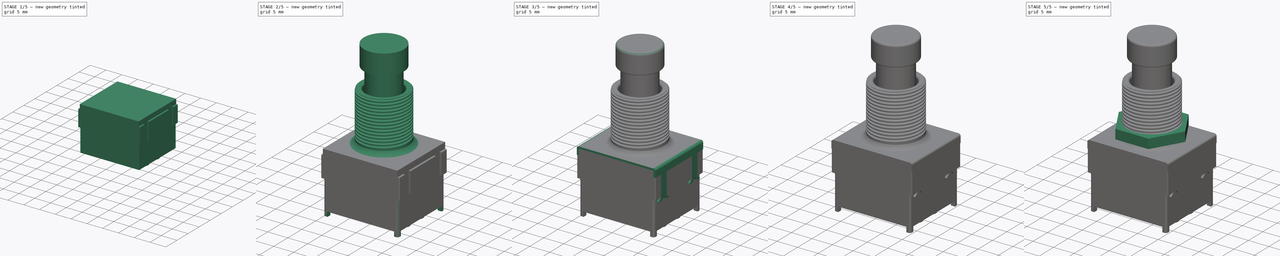
[diagram: build sequence overview — one tinted view per stage of 5, left to right]
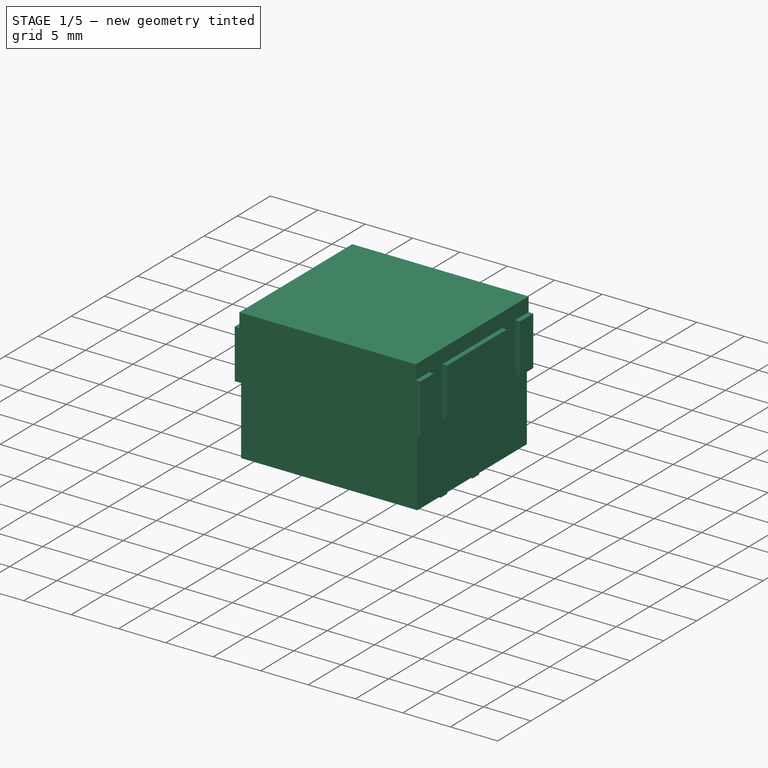
[diagram: stage 1 of 5 — iso view after this stage's code; geometry added in this stage tinted green]
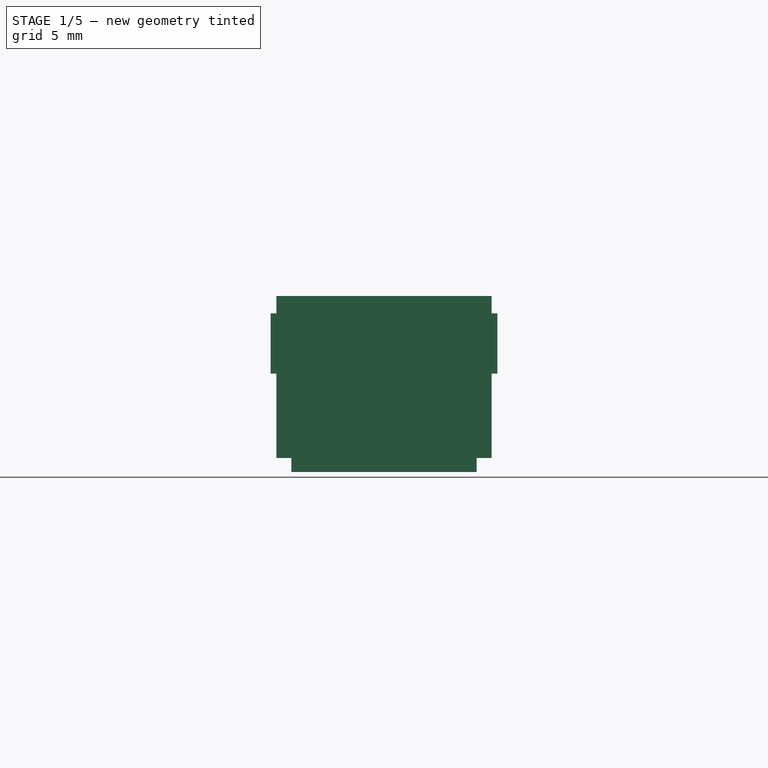
[diagram: stage 1 of 5 — front view after this stage's code; geometry added in this stage tinted green]
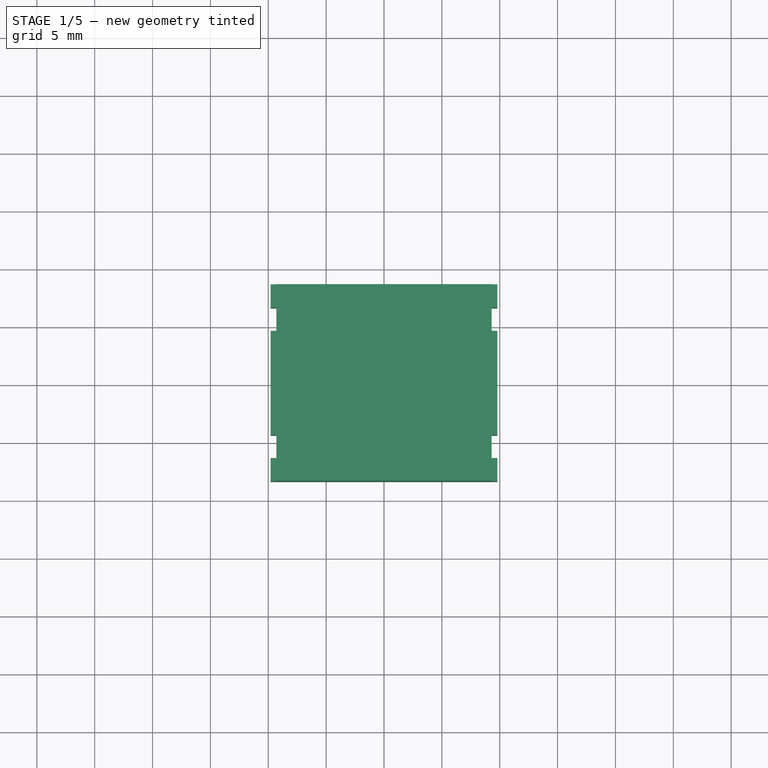
[diagram: stage 1 of 5 — top view after this stage's code; geometry added in this stage tinted green]
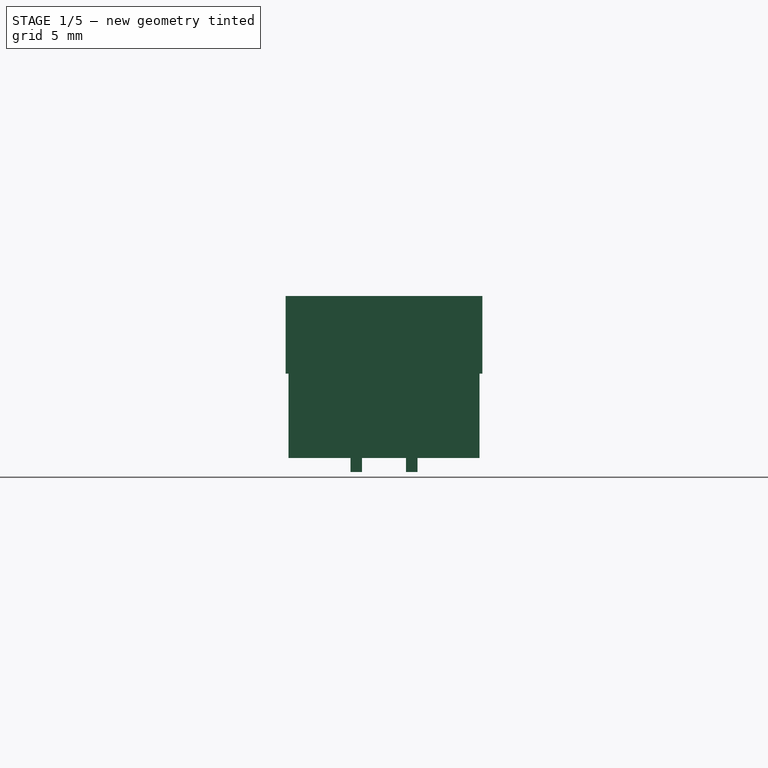
[diagram: stage 1 of 5 — right view after this stage's code; geometry added in this stage tinted green]
FCSTD DOCUMENT  (FreeCAD 0.19R16945 (Git))
Label: Alpha Taiwan SF17010 SF17020
License: All rights reserved
LicenseURL: http://en.wikipedia.org/wiki/All_rights_reserved
objects: Sketcher::SketchObject×36, PartDesign::Body×30, PartDesign::FeatureBase×20, PartDesign::Pad×14, PartDesign::Mirrored×12, PartDesign::Pocket×8, App::DocumentObjectGroup×7, PartDesign::MultiTransform×6, PartDesign::Fillet×5, PartDesign::LinearPattern×4, PartDesign::Plane×3, PartDesign::AdditiveLoft×3, PartDesign::ShapeBinder×2, Part::Helix×1, PartDesign::Chamfer×1, PartDesign::SubtractivePipe×1
note: 172 computed .brp shape members not serialized (recipe doc carries the construction recipe); baked Part::Feature solids carry a one-line shape summary decoded from their .brp

FEATURE [Sketcher::SketchObject] Sketch
  MapMode = 5
  Support = -> [XY_Plane]
  sketch-geometry (4):
    g0: LineSegment StartX=-9.8 StartY=8.5 StartZ=0 EndX=9.8 EndY=8.5 EndZ=0
    g1: LineSegment StartX=9.8 StartY=8.5 StartZ=0 EndX=9.8 EndY=-8.5 EndZ=0
    g2: LineSegment StartX=9.8 StartY=-8.5 StartZ=0 EndX=-9.8 EndY=-8.5 EndZ=0
    g3: LineSegment StartX=-9.8 StartY=-8.5 StartZ=0 EndX=-9.8 EndY=8.5 EndZ=0
  constraints (10):
    c: Coincident(g0,g1)
    c: Coincident(g1,g2)
    c: Coincident(g2,g3)
    c: Coincident(g3,g0)
    c: Horizontal(g2)
    c: Vertical(g3)
    c: Symmetric(g0,g0,g-2)
    c: Symmetric(g0,g1,g-1)
    c: DistanceX(g0,g0) = 19.6
    c: DistanceY(g1,g1) = 17
FEATURE [PartDesign::Pad] Pad  label="MainPad"
  Length = 15.7
  Length2 = 100
  Profile = -> Sketch
  Type = 0
FEATURE [Sketcher::SketchObject] Sketch001
  ExternalGeometry = -> [Pad]
  MapMode = 5
  Placement = pos=(0,-8.5,0) rot=(1,0,0;1.5708rad)
  Support = -> [Pad]
  sketch-geometry (4):
    g0: LineSegment StartX=-9.8 StartY=0 StartZ=0 EndX=9.8 EndY=0 EndZ=0
    g1: LineSegment StartX=9.8 StartY=0 StartZ=0 EndX=9.8 EndY=8.5 EndZ=0
    g2: LineSegment StartX=9.8 StartY=8.5 StartZ=0 EndX=-9.8 EndY=8.5 EndZ=0
    g3: LineSegment StartX=-9.8 StartY=8.5 StartZ=0 EndX=-9.8 EndY=0 EndZ=0
  constraints (11):
    c: Coincident(g0,g1)
    c: Coincident(g1,g2)
    c: Coincident(g2,g3)
    c: Coincident(g3,g0)
    c: Horizontal(g0)
    c: Horizontal(g2)
    c: Vertical(g1)
    c: Vertical(g3)
    c: Coincident(g0,g-3)
    c: PointOnObject(g1,g-4)
    c: DistanceY(g1,g1) = 8.5
FEATURE [PartDesign::Pocket] Pocket  label="FrontPocket"
  BaseFeature = -> Pad
  Length = 0.25
  Length2 = 100
  Profile = -> Sketch001
  Type = 0
FEATURE [PartDesign::Mirrored] Mirrored  label="FrontPocketMirrored"
  BaseFeature = -> Pocket
  MirrorPlane = -> XZ_Plane
  Originals = -> [Pocket]
FEATURE [Sketcher::SketchObject] Sketch002
  ExternalGeometry = -> [Mirrored]
  MapMode = 5
  Placement = pos=(-9.8,0,0) rot=(0.57735,-0.57735,-0.57735;2.0944rad)
  Support = -> [Mirrored]
  sketch-geometry (4):
    g0: LineSegment StartX=-8.25 StartY=0 StartZ=0 EndX=8.25 EndY=0 EndZ=0
    g1: LineSegment StartX=8.25 StartY=0 StartZ=0 EndX=8.25 EndY=8.5 EndZ=0
    g2: LineSegment StartX=8.25 StartY=8.5 StartZ=0 EndX=-8.25 EndY=8.5 EndZ=0
    g3: LineSegment StartX=-8.25 StartY=8.5 StartZ=0 EndX=-8.25 EndY=0 EndZ=0
  constraints (10):
    c: Coincident(g0,g1)
    c: Coincident(g1,g2)
    c: Coincident(g2,g3)
    c: Coincident(g3,g0)
    c: Horizontal(g0)
    c: Horizontal(g2)
    c: Vertical(g1)
    c: Vertical(g3)
    c: Coincident(g0,g-3)
    c: Coincident(g1,g-4)
FEATURE [PartDesign::Pocket] Pocket001  label="SideBottomPocket"
  BaseFeature = -> Mirrored
  Length = 0.5
  Length2 = 100
  Profile = -> Sketch002
  Type = 0
FEATURE [PartDesign::Mirrored] Mirrored001  label="SideBottomPocketMirrored"
  BaseFeature = -> Pocket001
  MirrorPlane = -> YZ_Plane
  Originals = -> [Pocket001]
FEATURE [Sketcher::SketchObject] Sketch008
  ExternalGeometry = -> [Mirrored001]
  MapMode = 5
  Placement = pos=(0,0,15.7) rot=(0,0,1;0rad)
  Support = -> [Mirrored001]
  sketch-geometry (4):
    g0: LineSegment StartX=9.8 StartY=8.5 StartZ=0 EndX=-9.8 EndY=8.5 EndZ=0
    g1: LineSegment StartX=-9.8 StartY=8.5 StartZ=0 EndX=-9.8 EndY=-8.5 EndZ=0
    g2: LineSegment StartX=-9.8 StartY=-8.5 StartZ=0 EndX=9.8 EndY=-8.5 EndZ=0
    g3: LineSegment StartX=9.8 StartY=-8.5 StartZ=0 EndX=9.8 EndY=8.5 EndZ=0
  constraints (10):
    c: Coincident(g0,g1)
    c: Coincident(g1,g2)
    c: Coincident(g2,g3)
    c: Coincident(g3,g0)
    c: Horizontal(g0)
    c: Horizontal(g2)
    c: Vertical(g1)
    c: Vertical(g3)
    c: Coincident(g0,g-3)
    c: Coincident(g1,g-4)
FEATURE [PartDesign::Pocket] Pocket002  label="TopPocket"
  BaseFeature = -> Mirrored001
  Length = 0.5
  Length2 = 100
  Profile = -> Sketch008
  Type = 0
FEATURE [Sketcher::SketchObject] Sketch009
  ExternalGeometry = -> [Pocket002]
  MapMode = 5
  Placement = pos=(-9.8,0,0) rot=(0.57735,-0.57735,-0.57735;2.0944rad)
  Support = -> [Pocket002]
  sketch-geometry (4):
    g0: LineSegment StartX=8.5 StartY=15.2 StartZ=0 EndX=-8.5 EndY=15.2 EndZ=0
    g1: LineSegment StartX=-8.5 StartY=15.2 StartZ=0 EndX=-8.5 EndY=13.7 EndZ=0
    g2: LineSegment StartX=-8.5 StartY=13.7 StartZ=0 EndX=8.5 EndY=13.7 EndZ=0
    g3: LineSegment StartX=8.5 StartY=13.7 StartZ=0 EndX=8.5 EndY=15.2 EndZ=0
  constraints (12):
    c: Coincident(g0,g1)
    c: Coincident(g1,g2)
    c: Coincident(g2,g3)
    c: Coincident(g3,g0)
    c: Horizontal(g0)
    c: Horizontal(g2)
    c: Vertical(g1)
    c: Vertical(g3)
    c: Coincident(g0,g-3)
    c: PointOnObject(g1,g-4)
    c: DistanceY(g1,g1) = 1.5
    c: DistanceY(g-4,g1) = 5.2
FEATURE [PartDesign::Pocket] Pocket003  label="SideTopPocket"
  BaseFeature = -> Pocket002
  Length = 0.5
  Length2 = 100
  Profile = -> Sketch009
  Type = 0
FEATURE [PartDesign::Mirrored] Mirrored004  label="SideTopPocketMirrored"
  BaseFeature = -> Pocket003
  MirrorPlane = -> YZ_Plane
  Originals = -> [Pocket003]
FEATURE [Sketcher::SketchObject] Sketch010
  ExternalGeometry = -> [Mirrored004]
  MapMode = 5
  Placement = pos=(-9.8,0,0) rot=(0.57735,-0.57735,-0.57735;2.0944rad)
  Support = -> [Mirrored004]
  sketch-geometry (4):
    g0: LineSegment StartX=-6.5 StartY=13.7 StartZ=0 EndX=-4.5 EndY=13.7 EndZ=0
    g1: LineSegment StartX=-4.5 StartY=13.7 StartZ=0 EndX=-4.5 EndY=8.5 EndZ=0
    g2: LineSegment StartX=-4.5 StartY=8.5 StartZ=0 EndX=-6.5 EndY=8.5 EndZ=0
    g3: LineSegment StartX=-6.5 StartY=8.5 StartZ=0 EndX=-6.5 EndY=13.7 EndZ=0
  constraints (12):
    c: Coincident(g0,g1)
    c: Coincident(g1,g2)
    c: Coincident(g2,g3)
    c: Coincident(g3,g0)
    c: Horizontal(g0)
    c: Horizontal(g2)
    c: Vertical(g1)
    c: Vertical(g3)
    c: PointOnObject(g0,g-3)
    c: PointOnObject(g1,g-4)
    c: DistanceX(g2,g2) = 2
    c: DistanceX(g-3,g0) = 2
FEATURE [PartDesign::Pocket] Pocket004  label="SideCutoutPocket"
  BaseFeature = -> Mirrored004
  Length = 0.5
  Length2 = 100
  Profile = -> Sketch010
  Refine = true
  Type = 0
FEATURE [PartDesign::Mirrored] Mirrored005
  MirrorPlane = -> XZ_Plane
FEATURE [PartDesign::Mirrored] Mirrored006
  MirrorPlane = -> YZ_Plane
FEATURE [PartDesign::MultiTransform] MultiTransform  label="SideCutoutPocketMultiTransform"
  BaseFeature = -> Pocket004
  Originals = -> [Pocket004]
  Refine = true
  Transformations = -> [Mirrored005,Mirrored006]
FEATURE [PartDesign::Body] Body005  label="Nut"
  Group = -> [Sketch023,Pad010]
  Origin = -> Origin005
  Tip = -> Pad010
FEATURE [Sketcher::SketchObject] Sketch024
  ExternalGeometry = -> [MultiTransform]
  MapMode = 5
  Placement = pos=(0,0,0) rot=(1,0,0;3.14159rad)
  Support = -> [MultiTransform]
  sketch-geometry (4):
    g0: LineSegment StartX=9.8 StartY=8.5 StartZ=0 EndX=-9.8 EndY=8.5 EndZ=0
    g1: LineSegment StartX=-9.8 StartY=8.5 StartZ=0 EndX=-9.8 EndY=-8.5 EndZ=0
    g2: LineSegment StartX=-9.8 StartY=-8.5 StartZ=0 EndX=9.8 EndY=-8.5 EndZ=0
    g3: LineSegment StartX=9.8 StartY=-8.5 StartZ=0 EndX=9.8 EndY=8.5 EndZ=0
  constraints (10):
    c: Coincident(g0,g1)
    c: Coincident(g1,g2)
    c: Coincident(g2,g3)
    c: Coincident(g3,g0)
    c: Horizontal(g0)
    c: Horizontal(g2)
    c: Vertical(g1)
    c: Vertical(g3)
    c: Coincident(g0,g-3)
    c: Coincident(g1,g-5)
FEATURE [PartDesign::Pocket] Pocket006  label="BottomPocket"
  BaseFeature = -> MultiTransform
  Length = 1.2
  Length2 = 100
  Profile = -> Sketch024
  Type = 0
FEATURE [Sketcher::SketchObject] Sketch025
  MapMode = 5
  Placement = pos=(0,0,1.2) rot=(1,0,0;3.14159rad)
  Support = -> [Pocket006]
  sketch-geometry (9):
    g0: LineSegment StartX=8 StartY=2.9 StartZ=0 EndX=8 EndY=1.9 EndZ=0
    g1: LineSegment StartX=-8 StartY=1.9 StartZ=0 EndX=-8 EndY=2.9 EndZ=0
    g2: LineSegment StartX=8 StartY=-1.9 StartZ=0 EndX=8 EndY=-2.9 EndZ=0
    g3: LineSegment StartX=-8 StartY=-2.9 StartZ=0 EndX=-8 EndY=-1.9 EndZ=0
    g4: LineSegment StartX=-8 StartY=2.9 StartZ=0 EndX=8 EndY=2.9 EndZ=0
    g5: LineSegment StartX=8 StartY=1.9 StartZ=0 EndX=-8 EndY=1.9 EndZ=0
    g6: LineSegment StartX=-8 StartY=-1.9 StartZ=0 EndX=8 EndY=-1.9 EndZ=0
    g7: LineSegment StartX=8 StartY=-2.9 StartZ=0 EndX=-8 EndY=-2.9 EndZ=0
    g8: GeomPoint X=-8 Y=2.4 Z=0
  constraints (22):
    c: Vertical(g0)
    c: Vertical(g2)
    c: Equal(g2,g3)
    c: Equal(g3,g1)
    c: Equal(g1,g0)
    c: Symmetric(g1,g3,g-1)
    c: DistanceX(g3,g2) = 16
    c: Symmetric(g1,g0,g-2)
    c: Vertical(g1)
    c: Vertical(g3)
    c: Symmetric(g2,g3,g-2)
    c: Coincident(g4,g1)
    c: Coincident(g4,g0)
    c: Coincident(g5,g0)
    c: Coincident(g5,g1)
    c: Coincident(g6,g3)
    c: Coincident(g6,g2)
    c: Coincident(g7,g2)
    c: Coincident(g7,g3)
    c: DistanceY(g0,g0) = 1
    c: Symmetric(g1,g1,g8)
    c: DistanceY(g-1,g8) = 2.4
FEATURE [PartDesign::Pad] Pad011  label="EpoxyBarrierPad"
  BaseFeature = -> Pocket006
  Length = 1.2
  Length2 = 100
  Profile = -> Sketch025
  Refine = true
  Type = 0
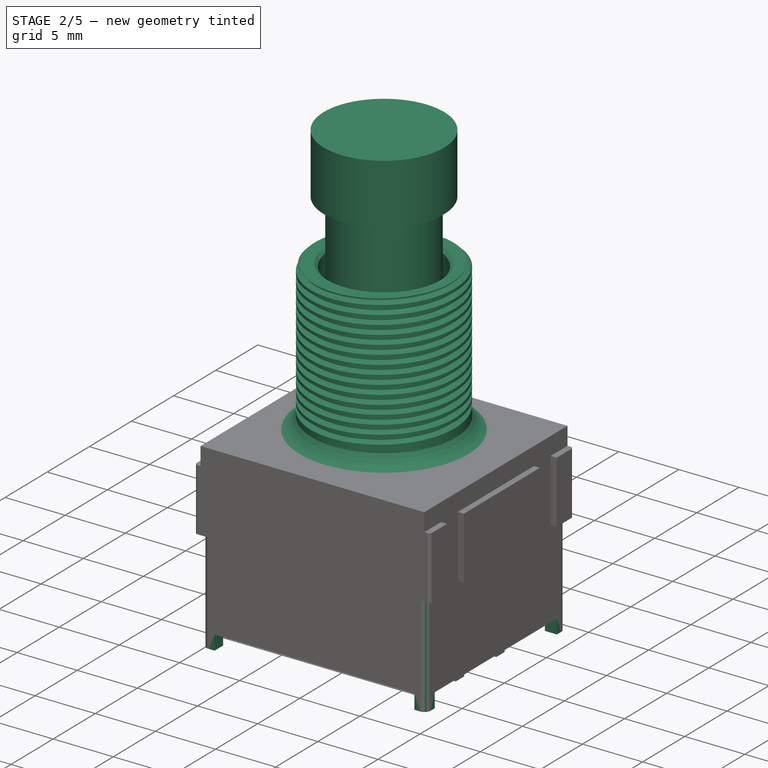
[diagram: stage 2 of 5 — iso view after this stage's code; geometry added in this stage tinted green]
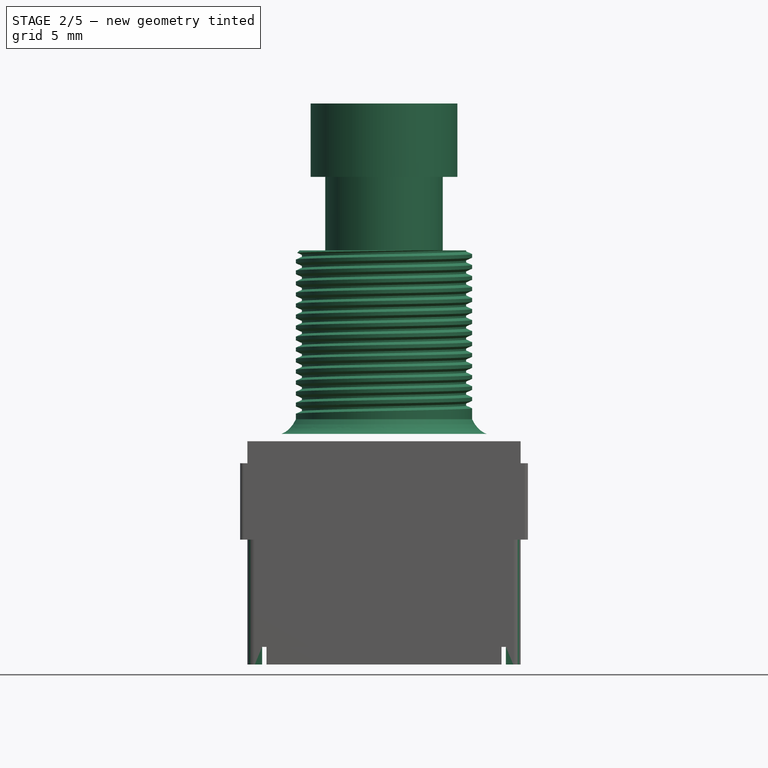
[diagram: stage 2 of 5 — front view after this stage's code; geometry added in this stage tinted green]
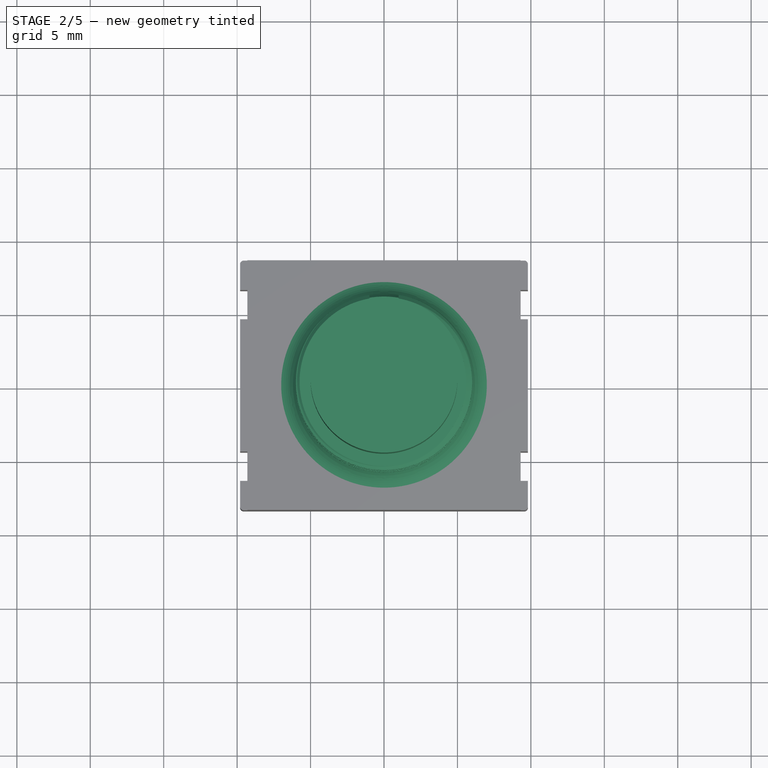
[diagram: stage 2 of 5 — top view after this stage's code; geometry added in this stage tinted green]
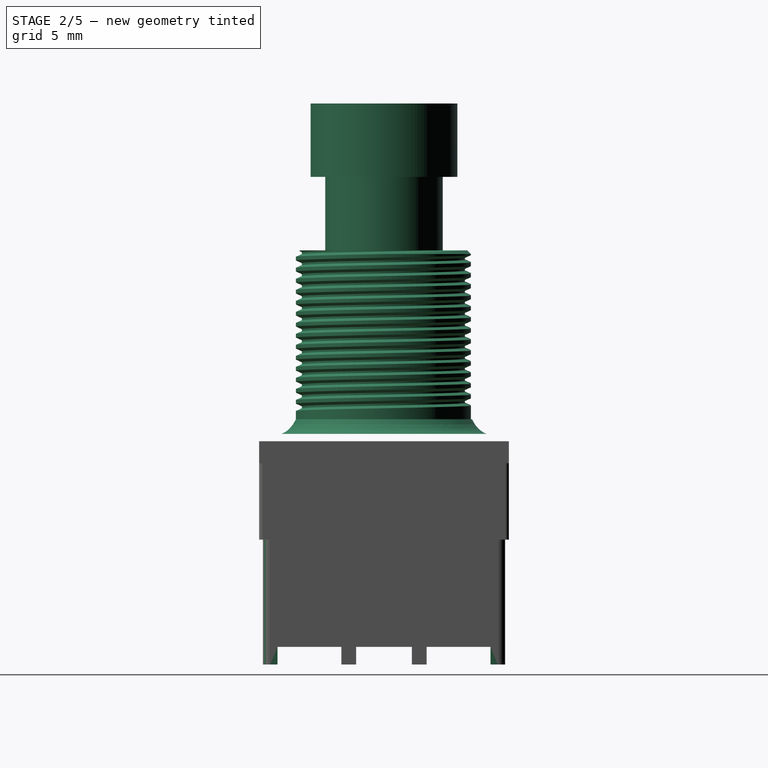
[diagram: stage 2 of 5 — right view after this stage's code; geometry added in this stage tinted green]
FEATURE [PartDesign::Body] Body001  label="BodyMetal"
  Group = -> [ShapeBinder,Sketch006,Pad001,Sketch011,Pad002,Mirrored007,Sketch012,Pad003,MultiTransform001,Mirrored008,Mirrored009,Sketch013,Pad004,MultiTransform002,Mirrored010,Mirrored011,Fillet]
  Origin = -> Origin001
  Tip = -> Fillet
FEATURE [Sketcher::SketchObject] Sketch014  label="SketchLoftMid"
  AttachmentOffset = pos=(0,0,16) rot=(0,0,1;1.5708rad)
  MapMode = 5
  Placement = pos=(0,0,16) rot=(0,0,1;1.5708rad)
  Support = -> [XY_Plane002]
  sketch-geometry (1):
    g0: Circle CenterX=0 CenterY=0 CenterZ=0 NormalX=0 NormalY=0 NormalZ=1 AngleXU=0 Radius=6.5
  constraints (2):
    c: Coincident(g0,g-1)
    c: Radius(g0) = 6.5
FEATURE [Sketcher::SketchObject] Sketch015
  AttachmentOffset = pos=(0,0,0) rot=(0,0,1;1.5708rad)
  MapMode = 5
  Placement = pos=(0,0,16.7) rot=(0,0,1;1.5708rad)
  sketch-geometry (1):
    g0: Circle CenterX=0 CenterY=0 CenterZ=0 NormalX=0 NormalY=0 NormalZ=1 AngleXU=0 Radius=6
  constraints (2):
    c: Coincident(g0,g-1)
    c: Radius(g0) = 6
FEATURE [Part::Helix] Helix
  Angle = 0
  AttacherType = Attacher::AttachEngine3D
  Height = 12.5
  LocalCoord = 0
  Pitch = 0.75
  Placement = pos=(0,0,17.7) rot=(0,0,1;1.5708rad)
  Radius = 6
  Style = 1
FEATURE [PartDesign::ShapeBinder] ShapeBinder001  label="HelixShapeBinder"
  Placement = pos=(0,0,17.7) rot=(0,0,1;1.5708rad)
  Support = -> [Helix]
  TraceSupport = false
FEATURE [Sketcher::SketchObject] Sketch018
  AttachmentOffset = pos=(5.4,17.7,0) rot=(0,0,1;0rad)
  MapMode = 5
  Placement = pos=(5.4,3.9e-15,17.7) rot=(1,0,0;1.5708rad)
  Support = -> [XZ_Plane002]
  sketch-geometry (5):
    g0: LineSegment StartX=0.195022 StartY=-0.0713665 StartZ=0 EndX=0.880811 EndY=-0.375 EndZ=0
    g1: LineSegment StartX=0.880811 StartY=-0.375 StartZ=0 EndX=0.880811 EndY=0.375 EndZ=0
    g2: LineSegment StartX=0.880811 StartY=0.375 StartZ=0 EndX=0.195022 EndY=0.0713665 EndZ=0
    g3: Circle [constr] CenterX=0.520233 CenterY=0 CenterZ=0 NormalX=0 NormalY=0 NormalZ=1 AngleXU=0 Radius=0.520233
    g4: LineSegment StartX=0.195022 StartY=0.0713665 StartZ=0 EndX=0.195022 EndY=-0.0713665 EndZ=0
  constraints (12):
    c: Coincident(g0,g1)
    c: Coincident(g1,g2)
    c: Equal(g0,g1)
    c: Equal(g0,g2)
    c: PointOnObject(g0,g3)
    c: PointOnObject(g1,g3)
    c: PointOnObject(g-1,g3)
    c: PointOnObject(g3,g-1)
    c: DistanceY(g1,g1) = 0.75
    c: Coincident(g2,g4)
    c: Coincident(g0,g4)
    c: Symmetric(g2,g0,g-1)
FEATURE [PartDesign::Plane] DatumPlane  label="z=16.7"
  AttachmentOffset = pos=(0,0,16.7) rot=(0,0,1;0rad)
  Length = 24
  MapMode = 5
  Placement = pos=(0,0,16.7) rot=(0,0,1;0rad)
  ResizeMode = 0
  Support = -> [XY_Plane003]
  Width = 24
FEATURE [PartDesign::Plane] DatumPlane001  label="z=28.2"
  AttachmentOffset = pos=(0,0,28.2) rot=(0,0,1;0rad)
  Length = 24
  MapMode = 5
  Placement = pos=(0,0,28.2) rot=(0,0,1;0rad)
  ResizeMode = 0
  Support = -> [XY_Plane003]
  Width = 24
FEATURE [Sketcher::SketchObject] Sketch019
  AttachmentOffset = pos=(0,0,16.7) rot=(0,0,1;1.5708rad)
  MapMode = 5
  Placement = pos=(0,0,16.7) rot=(0,0,1;1.5708rad)
  Support = -> [XY_Plane004]
  sketch-geometry (1):
    g0: Circle CenterX=0 CenterY=0 CenterZ=0 NormalX=0 NormalY=0 NormalZ=1 AngleXU=0 Radius=4
  constraints (2):
    c: Coincident(g0,g-1)
    c: Radius(g0) = 4
FEATURE [PartDesign::Pad] Pad008
  Length = 16.5
  Length2 = 100
  Profile = -> Sketch019
  Type = 0
FEATURE [Sketcher::SketchObject] Sketch020
  AttachmentOffset = pos=(0,0,0) rot=(0,0,1;1.5708rad)
  MapMode = 5
  Placement = pos=(0,0,33.2) rot=(0,0,1;1.5708rad)
  Support = -> [Pad008]
  sketch-geometry (1):
    g0: Circle CenterX=0 CenterY=0 CenterZ=0 NormalX=0 NormalY=0 NormalZ=1 AngleXU=0 Radius=5
  constraints (2):
    c: Coincident(g0,g-1)
    c: Radius(g0) = 5
FEATURE [PartDesign::Pad] Pad009
  BaseFeature = -> Pad008
  Length = 5
  Length2 = 100
  Profile = -> Sketch020
  Type = 0
FEATURE [PartDesign::Body] Body004  label="Plunger"
  Group = -> [Sketch019,Pad008,Sketch020,Pad009,Fillet001,Fillet002]
  Origin = -> Origin004
  Tip = -> Fillet002
FEATURE [PartDesign::Plane] DatumPlane002
  AttachmentOffset = pos=(0,0,38.2) rot=(0,0,1;0rad)
  Length = 24
  MapMode = 5
  Placement = pos=(0,0,38.2) rot=(0,0,1;0rad)
  ResizeMode = 0
  Support = -> [XY_Plane003]
  Width = 24
FEATURE [PartDesign::Body] Body003  label="ReferencePlanes"
  Group = -> [DatumPlane,DatumPlane001,DatumPlane002]
  Origin = -> Origin003
FEATURE [Sketcher::SketchObject] Sketch021  label="SketchLoftTop"
  AttachmentOffset = pos=(0,0,16.7) rot=(0,0,1;1.5708rad)
  MapMode = 5
  Placement = pos=(0,0,16.7) rot=(0,0,1;1.5708rad)
  Support = -> [XY_Plane002]
  sketch-geometry (1):
    g0: Circle CenterX=0 CenterY=0 CenterZ=0 NormalX=0 NormalY=0 NormalZ=1 AngleXU=0 Radius=6
  constraints (2):
    c: Coincident(g0,g-1)
    c: Radius(g0) = 6
FEATURE [Sketcher::SketchObject] Sketch022  label="SketchLoftBot"
  AttachmentOffset = pos=(0,0,15.7) rot=(0,0,1;1.5708rad)
  MapMode = 5
  Placement = pos=(0,0,15.7) rot=(0,0,1;1.5708rad)
  Support = -> [XY_Plane002]
  sketch-geometry (1):
    g0: Circle CenterX=0 CenterY=0 CenterZ=0 NormalX=0 NormalY=0 NormalZ=1 AngleXU=0 Radius=7
  constraints (2):
    c: Coincident(g0,g-1)
    c: Radius(g0) = 7
FEATURE [PartDesign::AdditiveLoft] AdditiveLoft  label="Nu"
  Closed = true
  Profile = -> Sketch022
  Refine = true
  Ruled = false
  Sections = -> [Sketch014,Sketch021]
FEATURE [PartDesign::Pad] Pad006  label="BushingNonThreaded"
  BaseFeature = -> AdditiveLoft
  Length = 1
  Length2 = 100
  Profile = -> Sketch015
  Type = 0
FEATURE [Sketcher::SketchObject] Sketch016
  AttachmentOffset = pos=(0,0,0) rot=(0,0,1;1.5708rad)
  MapMode = 5
  Placement = pos=(0,0,17.7) rot=(0,0,1;1.5708rad)
  Support = -> [Pad006]
  sketch-geometry (1):
    g0: Circle CenterX=0 CenterY=0 CenterZ=0 NormalX=0 NormalY=0 NormalZ=1 AngleXU=0 Radius=6
  constraints (2):
    c: Coincident(g0,g-1)
    c: Radius(g0) = 6
FEATURE [PartDesign::Pad] Pad007  label="BushingThread"
  BaseFeature = -> Pad006
  Length = 10.5
  Length2 = 100
  Profile = -> Sketch016
  Type = 0
FEATURE [Sketcher::SketchObject] Sketch017
  AttachmentOffset = pos=(0,0,0) rot=(0,0,1;1.5708rad)
  MapMode = 5
  Placement = pos=(0,0,28.2) rot=(0,0,1;1.5708rad)
  Support = -> [Pad007]
  sketch-geometry (1):
    g0: Circle CenterX=0 CenterY=0 CenterZ=0 NormalX=0 NormalY=0 NormalZ=1 AngleXU=0 Radius=4.5
  constraints (2):
    c: Coincident(g0,g-1)
    c: Radius(g0) = 4.5
FEATURE [PartDesign::Pocket] Pocket005  label="PlungerPocket"
  BaseFeature = -> Pad007
  Length = 10.5
  Length2 = 100
  Profile = -> Sketch017
  Type = 0
FEATURE [PartDesign::Chamfer] Chamfer  label="ThreadChamfer"
  Base = -> Pocket005 [Edge8,Edge7]
  BaseFeature = -> Pocket005
  Size = 0.25
FEATURE [PartDesign::SubtractivePipe] SubtractivePipe  label="ThreadProfileSubtractivePipe"
  AuxilleryCurvelinear = true
  AuxillerySpineTangent = false
  BaseFeature = -> Chamfer
  Binormal = (0,0,0)
  Mode = 2
  Profile = -> Sketch018
  Spine = -> ShapeBinder001
  SpineTangent = false
  Transformation = 0
  Transition = 0
FEATURE [PartDesign::Body] Body029  label="EpoxySealPinsClone2"
  Group = -> [Clone019]
  Origin = -> Origin029
  Placement = pos=(0,-4.8,0) rot=(0,0,1;0rad)
  Tip = -> Clone019
FEATURE [App::DocumentObjectGroup] Group003  label="Terminals_Type_010_Epoxy_Seal"
  Group = -> [Body027,Body028,Body029]
FEATURE [App::DocumentObjectGroup] Group004  label="010"
  Group = -> [Group002,Group003]
FEATURE [App::DocumentObjectGroup] Group005  label="020"
  Group = -> [Group,Group001]
FEATURE [Sketcher::SketchObject] Sketch038
  ExternalGeometry = -> [Pad011]
  MapMode = 5
  Placement = pos=(0,0,1.2) rot=(1,0,0;3.14159rad)
  Support = -> [Pad011]
  sketch-geometry (4):
    g0: LineSegment StartX=-9.3 StartY=8.25 StartZ=0 EndX=-8.3 EndY=8.25 EndZ=0
    g1: LineSegment StartX=-8.3 StartY=8.25 StartZ=0 EndX=-8.3 EndY=7.25 EndZ=0
    g2: LineSegment StartX=-8.3 StartY=7.25 StartZ=0 EndX=-9.3 EndY=7.25 EndZ=0
    g3: LineSegment StartX=-9.3 StartY=7.25 StartZ=0 EndX=-9.3 EndY=8.25 EndZ=0
  constraints (11):
    c: Coincident(g0,g1)
    c: Coincident(g1,g2)
    c: Coincident(g2,g3)
    c: Coincident(g3,g0)
    c: Horizontal(g0)
    c: Horizontal(g2)
    c: Vertical(g1)
    c: Vertical(g3)
    c: Coincident(g0,g-4)
    c: Equal(g1,g2)
    c: DistanceX(g0,g0) = 1
FEATURE [PartDesign::Pad] Pad014  label="CornerStandoffPad"
  BaseFeature = -> Pad011
  Length = 1.2
  Length2 = 100
  Profile = -> Sketch038
  Refine = true
  Type = 0
FEATURE [PartDesign::Mirrored] Mirrored012
  MirrorPlane = -> XZ_Plane
FEATURE [PartDesign::Mirrored] Mirrored013
  MirrorPlane = -> YZ_Plane
FEATURE [PartDesign::MultiTransform] MultiTransform005  label="CornerStandoffPadMultiTransform"
  BaseFeature = -> Pad014
  Originals = -> [Pad014]
  Refine = true
  Transformations = -> [Mirrored012,Mirrored013]
FEATURE [Sketcher::SketchObject] Sketch039
  AttachmentOffset = pos=(0,5,28.2) rot=(0,0,1;0rad)
  MapMode = 5
  Placement = pos=(0,5,28.2) rot=(0,0,1;0rad)
  Support = -> [XY_Plane002]
  sketch-geometry (4):
    g0: LineSegment StartX=-1 StartY=0 StartZ=0 EndX=1 EndY=0 EndZ=0
    g1: LineSegment StartX=1 StartY=0 StartZ=0 EndX=1 EndY=1 EndZ=0
    g2: LineSegment StartX=1 StartY=1 StartZ=0 EndX=-1 EndY=1 EndZ=0
    g3: LineSegment StartX=-1 StartY=1 StartZ=0 EndX=-1 EndY=0 EndZ=0
  constraints (11):
    c: Coincident(g0,g1)
    c: Coincident(g1,g2)
    c: Coincident(g2,g3)
    c: Coincident(g3,g0)
    c: Horizontal(g2)
    c: Vertical(g1)
    c: Vertical(g3)
    c: Symmetric(g0,g0,g-2)
    c: DistanceX(g2,g2) = 2
    c: DistanceY(g1,g1) = 1
    c: PointOnObject(g0,g-1)
FEATURE [PartDesign::Pocket] Pocket007  label="KeywayPocket"
  BaseFeature = -> SubtractivePipe
  Length = 11.5
  Length2 = 100
  Profile = -> Sketch039
  Type = 0
FEATURE [PartDesign::Body] Body002  label="Bushing"
  Group = -> [AdditiveLoft,Sketch014,Sketch021,Sketch015,Sketch016,Sketch022,Pad006,Pad007,Sketch017,Pocket005,ShapeBinder001,Sketch018,Chamfer,SubtractivePipe,Sketch039,Pocket007]
  Origin = -> Origin002
  Tip = -> Pocket007
FEATURE [PartDesign::Fillet] Fillet003
  Base = -> MultiTransform005 [Edge53,Edge132,Edge59,Edge131]
  BaseFeature = -> MultiTransform005
  Radius = 0.5
FEATURE [PartDesign::Fillet] Fillet004
  Base = -> Fillet003 [Edge95,Edge44,Edge92,Edge40]
  BaseFeature = -> Fillet003
  Radius = 0.25
FEATURE [PartDesign::Body] Body  label="BodyPlastic"
  Group = -> [Sketch,Pad,Sketch001,Pocket,Mirrored,Sketch002,Pocket001,Mirrored001,Sketch008,Pocket002,Sketch009,Pocket003,Mirrored004,Sketch010,Pocket004,MultiTransform,Mirrored005,Mirrored006,Sketch024,Pocket006,Sketch025,Pad011,Sketch038,Pad014,MultiTransform005,Mirrored012,Mirrored013,Fillet003,Fillet004]
  Origin = -> Origin
  Tip = -> Fillet004
FEATURE [App::DocumentObjectGroup] Group006  label="SF17XXX"
  Group = -> [Helix,Body003,Body,Body001,Body002,Body004]
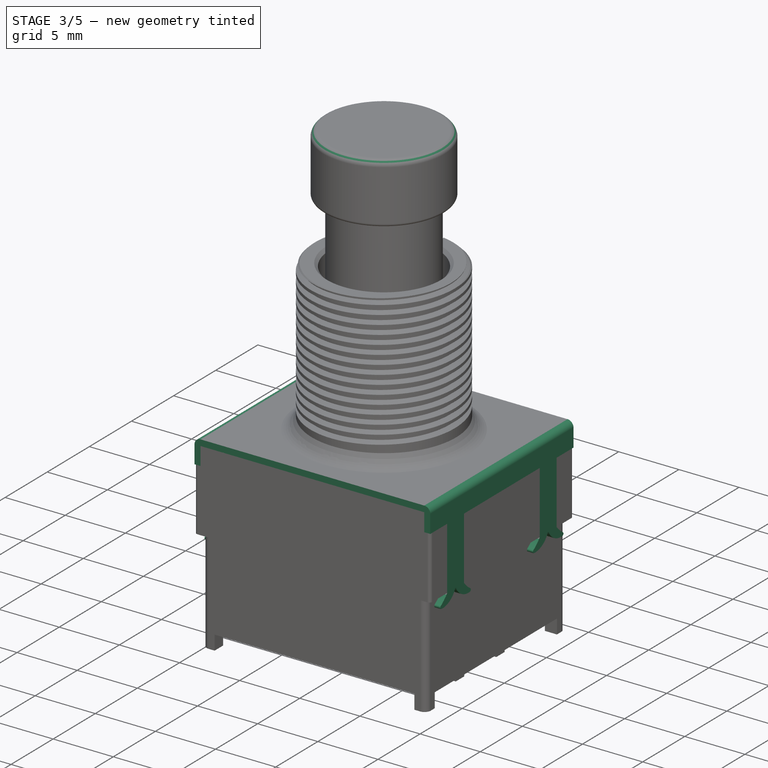
[diagram: stage 3 of 5 — iso view after this stage's code; geometry added in this stage tinted green]
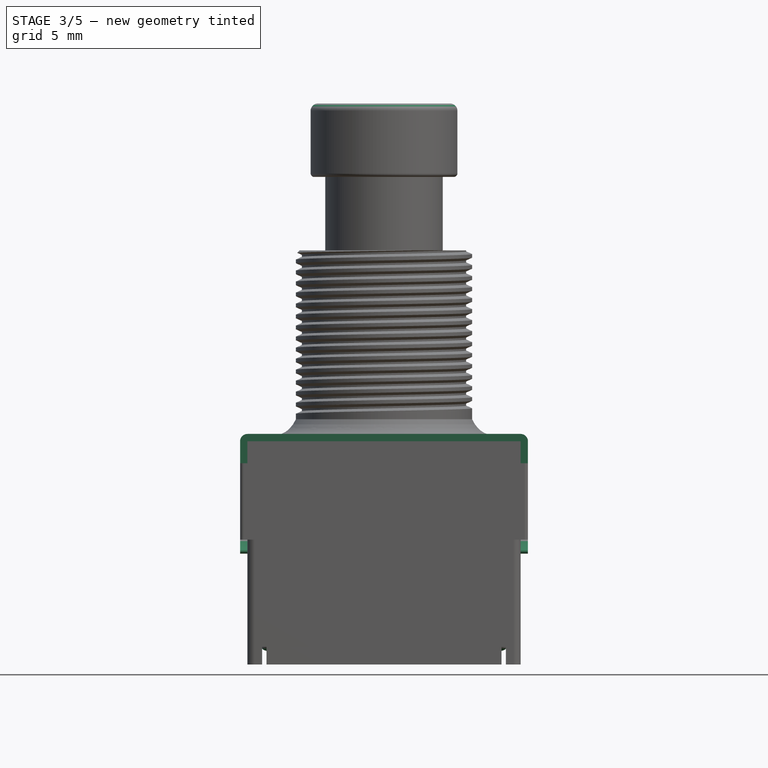
[diagram: stage 3 of 5 — front view after this stage's code; geometry added in this stage tinted green]
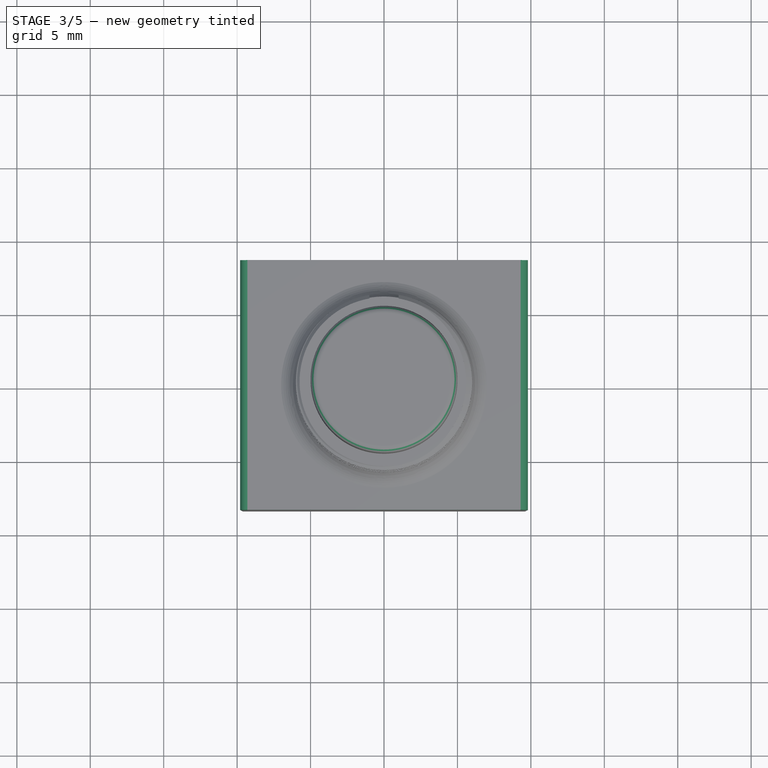
[diagram: stage 3 of 5 — top view after this stage's code; geometry added in this stage tinted green]
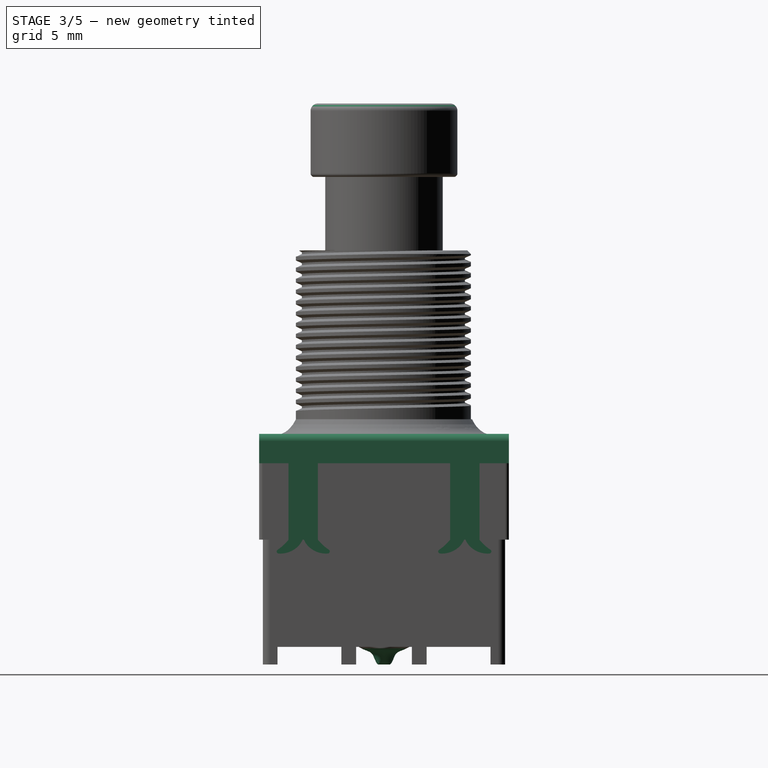
[diagram: stage 3 of 5 — right view after this stage's code; geometry added in this stage tinted green]
FEATURE [PartDesign::ShapeBinder] ShapeBinder
  Placement = pos=(0,0,15.7) rot=(0,0,1;0rad)
  TraceSupport = true
FEATURE [Sketcher::SketchObject] Sketch006
  AttachmentOffset = pos=(0,0,15.2) rot=(0,0,1;0rad)
  ExternalGeometry = -> [ShapeBinder]
  MapMode = 5
  Placement = pos=(0,0,15.2) rot=(0,0,1;0rad)
  Support = -> [XY_Plane001]
  sketch-geometry (4):
    g0: LineSegment StartX=-9.8 StartY=8.5 StartZ=0 EndX=9.8 EndY=8.5 EndZ=0
    g1: LineSegment StartX=9.8 StartY=8.5 StartZ=0 EndX=9.8 EndY=-8.5 EndZ=0
    g2: LineSegment StartX=9.8 StartY=-8.5 StartZ=0 EndX=-9.8 EndY=-8.5 EndZ=0
    g3: LineSegment StartX=-9.8 StartY=-8.5 StartZ=0 EndX=-9.8 EndY=8.5 EndZ=0
  constraints (10):
    c: Coincident(g0,g1)
    c: Coincident(g1,g2)
    c: Coincident(g2,g3)
    c: Coincident(g3,g0)
    c: Horizontal(g0)
    c: Horizontal(g2)
    c: Vertical(g1)
    c: Vertical(g3)
    c: Coincident(g0,g-5)
    c: Coincident(g1,g-4)
FEATURE [PartDesign::Pad] Pad001  label="PadTop"
  Length = 0.5
  Length2 = 100
  Profile = -> Sketch006
  Type = 0
FEATURE [Sketcher::SketchObject] Sketch011
  ExternalGeometry = -> [Pad001]
  MapMode = 5
  Placement = pos=(0,0,15.2) rot=(1,0,0;3.14159rad)
  Support = -> [Pad001]
  sketch-geometry (4):
    g0: LineSegment StartX=-9.8 StartY=8.5 StartZ=0 EndX=-9.3 EndY=8.5 EndZ=0
    g1: LineSegment StartX=-9.3 StartY=8.5 StartZ=0 EndX=-9.3 EndY=-8.5 EndZ=0
    g2: LineSegment StartX=-9.3 StartY=-8.5 StartZ=0 EndX=-9.8 EndY=-8.5 EndZ=0
    g3: LineSegment StartX=-9.8 StartY=-8.5 StartZ=0 EndX=-9.8 EndY=8.5 EndZ=0
  constraints (11):
    c: Coincident(g0,g1)
    c: Coincident(g1,g2)
    c: Coincident(g2,g3)
    c: Coincident(g3,g0)
    c: Horizontal(g0)
    c: Horizontal(g2)
    c: Vertical(g1)
    c: Vertical(g3)
    c: Coincident(g0,g-4)
    c: PointOnObject(g1,g-5)
    c: DistanceX(g2,g2) = 0.5
FEATURE [PartDesign::Pad] Pad002  label="PadSide"
  BaseFeature = -> Pad001
  Length = 1.5
  Length2 = 100
  Profile = -> Sketch011
  Type = 0
FEATURE [PartDesign::Mirrored] Mirrored007  label="PadSideMirrored"
  BaseFeature = -> Pad002
  MirrorPlane = -> YZ_Plane001
  Originals = -> [Pad002]
  Refine = true
FEATURE [Sketcher::SketchObject] Sketch012
  ExternalGeometry = -> [Mirrored007]
  MapMode = 5
  Placement = pos=(0,0,13.7) rot=(1,0,0;3.14159rad)
  Support = -> [Mirrored007]
  sketch-geometry (4):
    g0: LineSegment StartX=-9.8 StartY=6.5 StartZ=0 EndX=-9.3 EndY=6.5 EndZ=0
    g1: LineSegment StartX=-9.3 StartY=6.5 StartZ=0 EndX=-9.3 EndY=4.5 EndZ=0
    g2: LineSegment StartX=-9.3 StartY=4.5 StartZ=0 EndX=-9.8 EndY=4.5 EndZ=0
    g3: LineSegment StartX=-9.8 StartY=4.5 StartZ=0 EndX=-9.8 EndY=6.5 EndZ=0
  constraints (12):
    c: Coincident(g0,g1)
    c: Coincident(g1,g2)
    c: Coincident(g2,g3)
    c: Coincident(g3,g0)
    c: Horizontal(g0)
    c: Horizontal(g2)
    c: Vertical(g1)
    c: Vertical(g3)
    c: PointOnObject(g0,g-3)
    c: DistanceY(g0,g-3) = 2
    c: DistanceY(g3,g3) = 2
    c: DistanceX(g2,g2) = 0.5
FEATURE [PartDesign::Pad] Pad003  label="PadSideExtension"
  BaseFeature = -> Mirrored007
  Length = 5.2
  Length2 = 100
  Profile = -> Sketch012
  Type = 0
FEATURE [PartDesign::Mirrored] Mirrored008
  MirrorPlane = -> YZ_Plane001
FEATURE [PartDesign::Mirrored] Mirrored009
  MirrorPlane = -> XZ_Plane001
FEATURE [PartDesign::MultiTransform] MultiTransform001  label="PadSideExtensionMultiTransform"
  BaseFeature = -> Pad003
  Originals = -> [Pad003]
  Refine = true
  Transformations = -> [Mirrored008,Mirrored009]
FEATURE [Sketcher::SketchObject] Sketch013
  ExternalGeometry = -> [MultiTransform001]
  MapMode = 5
  Placement = pos=(-9.8,0,0) rot=(0.57735,-0.57735,-0.57735;2.0944rad)
  Support = -> [MultiTransform001]
  sketch-geometry (19):
    g0: ArcOfEllipse CenterX=-6.86454 CenterY=8.77098 CenterZ=0 NormalX=0 NormalY=0 NormalZ=1 MajorRadius=1.43446 MinorRadius=1.18317 AngleXU=-2.77241 StartAngle=1.03324 EndAngle=2.47877
    g1: LineSegment [constr] StartX=-8.20236 StartY=8.25336 StartZ=0 EndX=-5.52673 EndY=9.28861 EndZ=0
    g2: LineSegment [constr] StartX=-6.4376 StartY=7.66753 StartZ=0 EndX=-7.29149 EndY=9.87444 EndZ=0
    g3: GeomPoint X=-7.62094 Y=8.47832 Z=0
    g4: GeomPoint X=-6.10815 Y=9.06364 Z=0
    g5: ArcOfEllipse CenterX=-7.52683 CenterY=8.74878 CenterZ=0 NormalX=0 NormalY=0 NormalZ=1 MajorRadius=1.71396 MinorRadius=0.917033 AngleXU=-2.43689 StartAngle=1.33998 EndAngle=1.9416
    g6: LineSegment [constr] StartX=-8.83253 StartY=7.63847 StartZ=0 EndX=-6.22113 EndY=9.85909 EndZ=0
    g7: LineSegment [constr] StartX=-6.93277 StartY=8.05018 StartZ=0 EndX=-8.12089 EndY=9.44738 EndZ=0
    g8: GeomPoint X=-8.62992 Y=7.81076 Z=0
    g9: GeomPoint X=-6.42373 Y=9.6868 Z=0
    g10: LineSegment StartX=-6.5 StartY=8.5 StartZ=0 EndX=-5.54728 EndY=8.5 EndZ=0
    g11: LineSegment [constr] StartX=-5.5 StartY=8.5 StartZ=0 EndX=-5.5 EndY=9.96727 EndZ=0
    g12: ArcOfCircle CenterX=-7.17055 CenterY=7.69757 CenterZ=0 NormalX=0 NormalY=0 NormalZ=1 AngleXU=0 Radius=0.139998 StartAngle=2.15042 EndAngle=4.62459
    g13: GeomPoint X=-7.24723 Y=7.8147 Z=0
    g14: GeomPoint X=-7.18282 Y=7.55811 Z=0
    g15: ArcOfEllipse CenterX=-4.13546 CenterY=8.77098 CenterZ=0 NormalX=0 NormalY=0 NormalZ=1 MajorRadius=1.43446 MinorRadius=1.18317 AngleXU=-0.369179 StartAngle=3.80441 EndAngle=5.24995
    g16: ArcOfCircle CenterX=-3.82945 CenterY=7.69757 CenterZ=0 NormalX=0 NormalY=0 NormalZ=1 AngleXU=0 Radius=0.139998 StartAngle=4.80019 EndAngle=7.27436
    g17: ArcOfEllipse CenterX=-3.47317 CenterY=8.74878 CenterZ=0 NormalX=0 NormalY=0 NormalZ=1 MajorRadius=1.71396 MinorRadius=0.917033 AngleXU=-0.704701 StartAngle=4.34158 EndAngle=4.9432
    g18: LineSegment StartX=-4.5 StartY=8.5 StartZ=0 EndX=-5.45272 EndY=8.5 EndZ=0
  constraints (20):
    c: InternalAlignment(g1-g4 -> g0) x4
    c: PointOnObject(g0,g-3)
    c: InternalAlignment(g6-g9 -> g5) x4
    c: Coincident(g5,g-3)
    c: Coincident(g10,g5)
    c: Coincident(g10,g0)
    c: PointOnObject(g11,g-3)
    c: Symmetric(g-3,g5,g11)
    c: PointOnObject(g12,g0)
    c: PointOnObject(g13,g5)
    c: Tangent(g5,g12,g13) = 1.5708
    c: PointOnObject(g14,g0)
    c: Tangent(g0,g12,g14) = -1.5708
    c: Coincident(g0,g12)
    c: Coincident(g5,g12)
    c: Coincident(g18,g17)
    c: Coincident(g18,g15)
    c: PointOnObject(g16,g15)
    c: Coincident(g15,g16)
    c: Coincident(g17,g16)
FEATURE [PartDesign::Pad] Pad004  label="PadSideHooks"
  BaseFeature = -> MultiTransform001
  Length = 0.5
  Length2 = 100
  Profile = -> Sketch013
  Refine = true
  Reversed = true
  Type = 0
FEATURE [PartDesign::Mirrored] Mirrored010
  MirrorPlane = -> YZ_Plane001
FEATURE [PartDesign::Mirrored] Mirrored011
  MirrorPlane = -> XZ_Plane001
FEATURE [PartDesign::MultiTransform] MultiTransform002  label="PadSideHooksMultiTransform"
  BaseFeature = -> Pad004
  Originals = -> [Pad004]
  Refine = true
  Transformations = -> [Mirrored010,Mirrored011]
FEATURE [PartDesign::Fillet] Fillet
  Base = -> MultiTransform002 [Edge24,Edge22]
  BaseFeature = -> MultiTransform002
  Radius = 0.5
FEATURE [PartDesign::Fillet] Fillet001
  Base = -> Pad009 [Edge2]
  BaseFeature = -> Pad009
  Radius = 0.25
FEATURE [PartDesign::Fillet] Fillet002
  Base = -> Fillet001 [Edge3]
  BaseFeature = -> Fillet001
  Radius = 0.5
FEATURE [PartDesign::Body] Body014  label="Terminal_A1"
  Group = -> [Clone007]
  Origin = -> Origin014
  Placement = pos=(-5.3,-4.8,0) rot=(0,0,1;0rad)
  Tip = -> Clone007
FEATURE [App::DocumentObjectGroup] Group  label="Terminals_Type_020"
  Group = -> [Body006,Body007,Body008,Body009,Body010,Body011,Body012,Body013,Body014]
FEATURE [Sketcher::SketchObject] Sketch027  label="EpoxyBottom"
  AttachmentOffset = pos=(0,0,1.2) rot=(0,0,1;0rad)
  MapMode = 5
  Placement = pos=(0,0,1.2) rot=(0,0,1;0rad)
  Support = -> [XY_Plane015]
  sketch-geometry (5):
    g0: Ellipse CenterX=0 CenterY=0 CenterZ=0 NormalX=0 NormalY=0 NormalZ=1 MajorRadius=3.03081 MinorRadius=1.73152 AngleXU=3.14159
    g1: LineSegment [constr] StartX=-3.03081 StartY=0 StartZ=0 EndX=3.03081 EndY=0 EndZ=0
    g2: LineSegment [constr] StartX=0 StartY=-1.73152 StartZ=0 EndX=0 EndY=1.73152 EndZ=0
    g3: GeomPoint X=-2.4875 Y=0 Z=0
    g4: GeomPoint X=2.4875 Y=0 Z=0
  constraints (3):
    c: InternalAlignment(g1-g4 -> g0) x4
    c: Coincident(g0,g-1)
    c: PointOnObject(g3,g-1)
FEATURE [Sketcher::SketchObject] Sketch028  label="EpoxyMid1"
  AttachmentOffset = pos=(0,0,0.9) rot=(0,0,1;0rad)
  MapMode = 5
  Placement = pos=(0,0,0.9) rot=(0,0,1;0rad)
  Support = -> [XY_Plane015]
  sketch-geometry (5):
    g0: Ellipse CenterX=0 CenterY=0 CenterZ=0 NormalX=0 NormalY=0 NormalZ=1 MajorRadius=2.62169 MinorRadius=1.06168 AngleXU=3.14159
    g1: LineSegment [constr] StartX=-2.62169 StartY=0 StartZ=0 EndX=2.62169 EndY=0 EndZ=0
    g2: LineSegment [constr] StartX=0 StartY=-1.06168 StartZ=0 EndX=0 EndY=1.06168 EndZ=0
    g3: GeomPoint X=-2.3971 Y=0 Z=0
    g4: GeomPoint X=2.3971 Y=0 Z=0
  constraints (3):
    c: InternalAlignment(g1-g4 -> g0) x4
    c: Coincident(g0,g-1)
    c: PointOnObject(g1,g-1)
FEATURE [Sketcher::SketchObject] Sketch029  label="EpoxyMid2"
  AttachmentOffset = pos=(0,0,0.8) rot=(0,0,1;0rad)
  MapMode = 5
  Placement = pos=(0,0,0.8) rot=(0,0,1;0rad)
  Support = -> [XY_Plane015]
  sketch-geometry (5):
    g0: Ellipse CenterX=0 CenterY=0 CenterZ=0 NormalX=0 NormalY=0 NormalZ=1 MajorRadius=2.31462 MinorRadius=0.887153 AngleXU=3.14159
    g1: LineSegment [constr] StartX=-2.31462 StartY=0 StartZ=0 EndX=2.31462 EndY=0 EndZ=0
    g2: LineSegment [constr] StartX=0 StartY=-0.887153 StartZ=0 EndX=0 EndY=0.887153 EndZ=0
    g3: GeomPoint X=-2.13785 Y=0 Z=0
    g4: GeomPoint X=2.13785 Y=0 Z=0
  constraints (3):
    c: InternalAlignment(g1-g4 -> g0) x4
    c: Coincident(g0,g-1)
    c: PointOnObject(g1,g-1)
FEATURE [Sketcher::SketchObject] Sketch030  label="EpoxyMid3"
  AttachmentOffset = pos=(0,0,0.4) rot=(0,0,1;0rad)
  MapMode = 5
  Placement = pos=(0,0,0.4) rot=(0,0,1;0rad)
  Support = -> [XY_Plane015]
  sketch-geometry (5):
    g0: Ellipse CenterX=0 CenterY=0 CenterZ=0 NormalX=0 NormalY=0 NormalZ=1 MajorRadius=1.63775 MinorRadius=0.648702 AngleXU=3.14159
    g1: LineSegment [constr] StartX=-1.63775 StartY=0 StartZ=0 EndX=1.63775 EndY=0 EndZ=0
    g2: LineSegment [constr] StartX=0 StartY=-0.648702 StartZ=0 EndX=0 EndY=0.648702 EndZ=0
    g3: GeomPoint X=-1.5038 Y=0 Z=0
    g4: GeomPoint X=1.5038 Y=0 Z=0
  constraints (3):
    c: InternalAlignment(g1-g4 -> g0) x4
    c: Coincident(g0,g-1)
    c: PointOnObject(g1,g-1)
FEATURE [Sketcher::SketchObject] Sketch031  label="EpoxyTop"
  MapMode = 5
  Support = -> [XY_Plane015]
  sketch-geometry (4):
    g0: LineSegment StartX=-1.0025 StartY=0.40025 StartZ=0 EndX=1.0025 EndY=0.40025 EndZ=0
    g1: LineSegment StartX=1.0025 StartY=0.40025 StartZ=0 EndX=1.0025 EndY=-0.40025 EndZ=0
    g2: LineSegment StartX=1.0025 StartY=-0.40025 StartZ=0 EndX=-1.0025 EndY=-0.40025 EndZ=0
    g3: LineSegment StartX=-1.0025 StartY=-0.40025 StartZ=0 EndX=-1.0025 EndY=0.40025 EndZ=0
  constraints (10):
    c: Coincident(g0,g1)
    c: Coincident(g1,g2)
    c: Coincident(g2,g3)
    c: Coincident(g3,g0)
    c: Horizontal(g2)
    c: Vertical(g3)
    c: Symmetric(g0,g0,g-2)
    c: Symmetric(g1,g0,g-1)
    c: DistanceY(g1,g1) = 0.8005
    c: DistanceX(g2,g2) = 2.005
FEATURE [PartDesign::AdditiveLoft] AdditiveLoft001  label="EpoxySealTerminalsAdditiveLoft"
  Closed = true
  Profile = -> Sketch027
  Refine = true
  Ruled = false
  Sections = -> [Sketch028,Sketch029,Sketch030,Sketch031]
FEATURE [PartDesign::LinearPattern] LinearPattern
  Direction = -> X_Axis015
  Length = 5.3
  Occurrences = 2
FEATURE [PartDesign::LinearPattern] LinearPattern001
  Direction = -> X_Axis015
  Length = 5.3
  Occurrences = 2
  Reversed = true
FEATURE [PartDesign::MultiTransform] MultiTransform003  label="EpoxySealTerminalsMultiTransform"
  BaseFeature = -> AdditiveLoft001
  Originals = -> [AdditiveLoft001]
  Transformations = -> [LinearPattern,LinearPattern001]
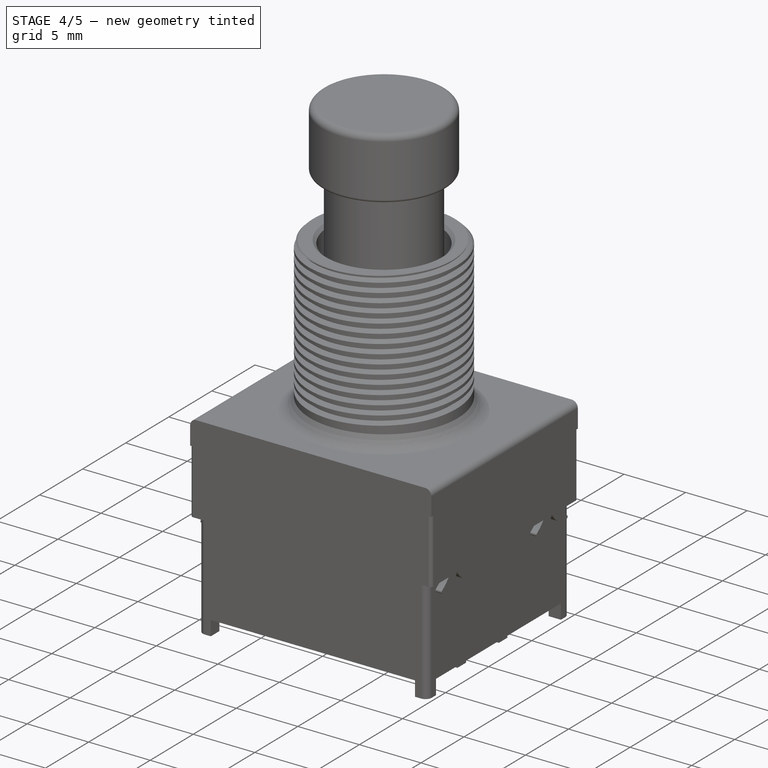
[diagram: stage 4 of 5 — iso view after this stage's code; geometry added in this stage tinted green]
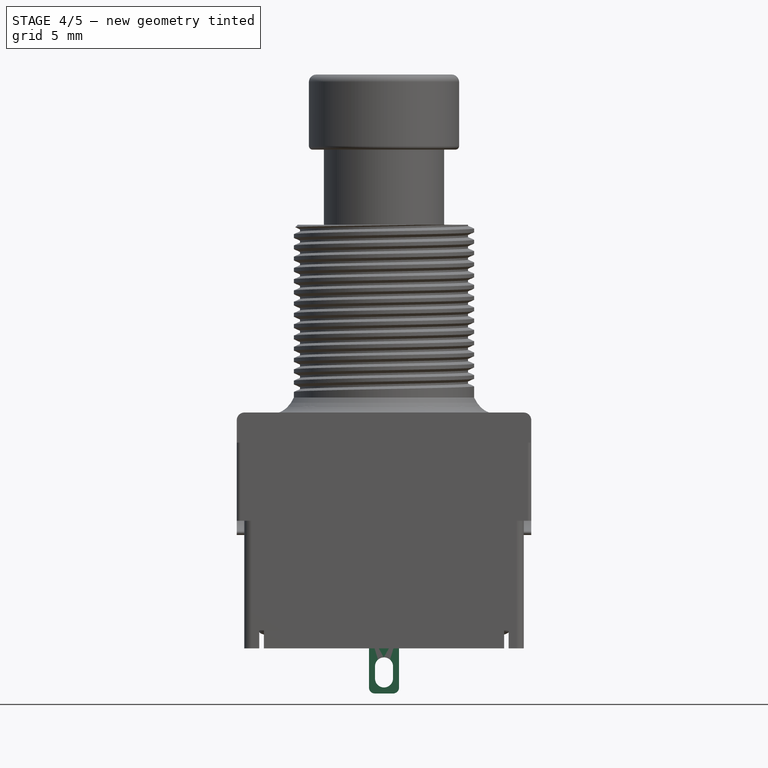
[diagram: stage 4 of 5 — front view after this stage's code; geometry added in this stage tinted green]
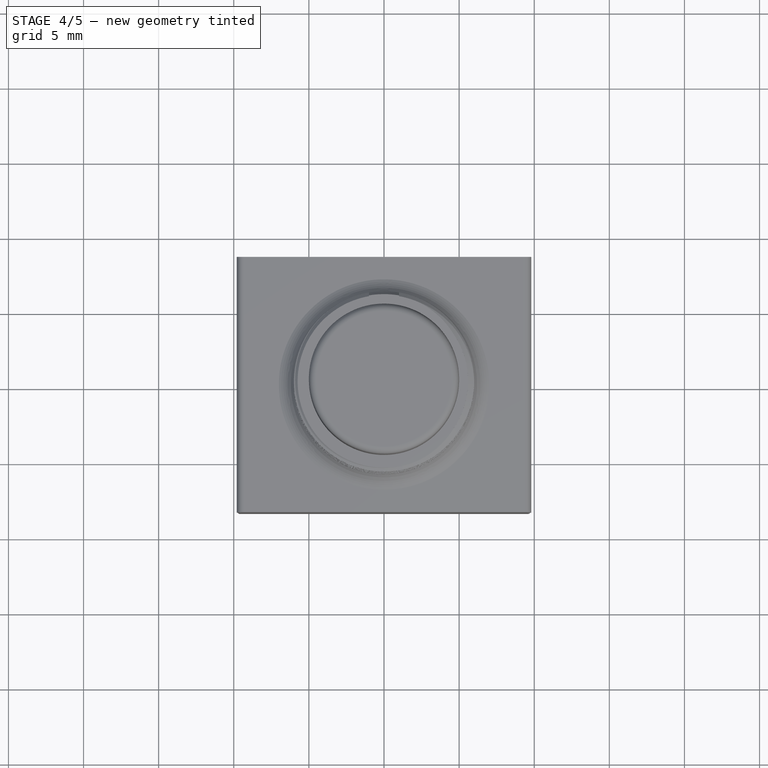
[diagram: stage 4 of 5 — top view after this stage's code; geometry added in this stage tinted green]
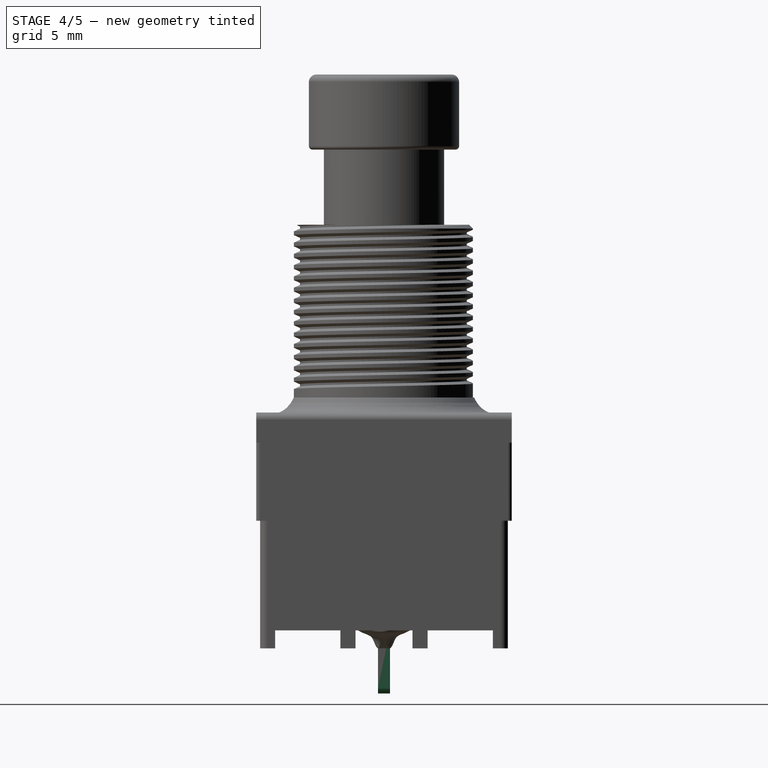
[diagram: stage 4 of 5 — right view after this stage's code; geometry added in this stage tinted green]
FEATURE [Sketcher::SketchObject] Sketch026
  MapMode = 5
  Placement = pos=(0,0,0) rot=(1,0,0;1.5708rad)
  Support = -> [XZ_Plane006]
  sketch-geometry (13):
    g0: LineSegment StartX=-1 StartY=1.2 StartZ=0 EndX=1 EndY=1.2 EndZ=0
    g1: LineSegment StartX=1 StartY=1.2 StartZ=0 EndX=1 EndY=-2.61136 EndZ=0
    g2: LineSegment StartX=0.611357 StartY=-3 StartZ=0 EndX=-0.611357 EndY=-3 EndZ=0
    g3: LineSegment StartX=-1 StartY=-2.61136 StartZ=0 EndX=-1 EndY=1.2 EndZ=0
    g4: GeomPoint X=-1 Y=0 Z=0
    g5: ArcOfCircle CenterX=0 CenterY=-1.2 CenterZ=0 NormalX=0 NormalY=0 NormalZ=1 AngleXU=0 Radius=0.6 StartAngle=2e-16 EndAngle=3.14159
    g6: ArcOfCircle CenterX=0 CenterY=-2 CenterZ=0 NormalX=0 NormalY=0 NormalZ=1 AngleXU=0 Radius=0.6 StartAngle=3.14159 EndAngle=6.28319
    g7: LineSegment StartX=-0.6 StartY=-1.2 StartZ=0 EndX=-0.6 EndY=-2 EndZ=0
    g8: LineSegment StartX=0.6 StartY=-1.2 StartZ=0 EndX=0.6 EndY=-2 EndZ=0
    g9: ArcOfCircle CenterX=0.611357 CenterY=-2.61136 CenterZ=0 NormalX=0 NormalY=0 NormalZ=1 AngleXU=0 Radius=0.388643 StartAngle=4.71239 EndAngle=6.28319
    g10: ArcOfCircle CenterX=-0.611357 CenterY=-2.61136 CenterZ=0 NormalX=0 NormalY=0 NormalZ=1 AngleXU=0 Radius=0.388643 StartAngle=3.14159 EndAngle=4.71239
    g11: GeomPoint X=0 Y=-0.6 Z=0
    g12: GeomPoint X=0 Y=-2.6 Z=0
  constraints (30):
    c: Coincident(g0,g1)
    c: Coincident(g3,g0)
    c: Horizontal(g2)
    c: Vertical(g1)
    c: Vertical(g3)
    c: PointOnObject(g4,g3)
    c: PointOnObject(g4,g-1)
    c: DistanceY(g4,g0) = 1.2
    c: Symmetric(g0,g0,g-2)
    c: Tangent(g5,g8) = 1.5708
    c: Tangent(g5,g7) = -1.5708
    c: Tangent(g7,g6) = -1.5708
    c: Tangent(g8,g6) = 1.5708
    c: Vertical(g7)
    c: Equal(g5,g6)
    c: PointOnObject(g5,g-2)
    c: Tangent(g1,g9) = 1.5708
    c: Tangent(g2,g9) = 1.5708
    c: Tangent(g2,g10) = 1.5708
    c: Tangent(g3,g10) = 1.5708
    c: DistanceX(g5,g5) = 1.2
    c: DistanceX(g3,g1) = 2
    c: Equal(g9,g10)
    c: PointOnObject(g11,g5)
    c: PointOnObject(g12,g6)
    c: PointOnObject(g11,g-2)
    c: PointOnObject(g12,g-2)
    c: DistanceY(g12,g11) = 2
    c: DistanceY(g2,g12) = 0.4
    c: DistanceY(g2,g4) = 3
FEATURE [PartDesign::Pad] Pad012  label="Terminal_Type_20"
  Length = 0.8
  Length2 = 100
  Midplane = true
  Placement = pos=(0,0,0) rot=(1,0,0;1.5708rad)
  Profile = -> Sketch026
  Type = 0
FEATURE [PartDesign::Body] Body006  label="Terminal_B2_Original"
  Group = -> [Sketch026,Pad012]
  Origin = -> Origin006
  Tip = -> Pad012
FEATURE [PartDesign::FeatureBase] Clone
  BaseFeature = -> Body006
FEATURE [PartDesign::Body] Body007  label="Terminal_B3"
  Group = -> [Clone]
  Origin = -> Origin007
  Placement = pos=(0,4.8,0) rot=(0,0,1;0rad)
  Tip = -> Clone
FEATURE [PartDesign::FeatureBase] Clone001
  BaseFeature = -> Body006
FEATURE [PartDesign::Body] Body008  label="Terminal_B1"
  Group = -> [Clone001]
  Origin = -> Origin008
  Placement = pos=(0,-4.8,0) rot=(0,0,1;0rad)
  Tip = -> Clone001
FEATURE [PartDesign::FeatureBase] Clone002
  BaseFeature = -> Body006
FEATURE [PartDesign::Body] Body009  label="Terminal_C1"
  Group = -> [Clone002]
  Origin = -> Origin009
  Placement = pos=(5.3,-4.8,0) rot=(0,0,1;0rad)
  Tip = -> Clone002
FEATURE [PartDesign::FeatureBase] Clone003
  BaseFeature = -> Body006
FEATURE [PartDesign::Body] Body010  label="Terminal_C3"
  Group = -> [Clone003]
  Origin = -> Origin010
  Placement = pos=(5.3,4.8,0) rot=(0,0,1;0rad)
  Tip = -> Clone003
FEATURE [PartDesign::FeatureBase] Clone004
  BaseFeature = -> Body006
FEATURE [PartDesign::Body] Body011  label="Terminal_C2"
  Group = -> [Clone004]
  Origin = -> Origin011
  Placement = pos=(5.3,0,0) rot=(0,0,1;0rad)
  Tip = -> Clone004
FEATURE [PartDesign::FeatureBase] Clone005
  BaseFeature = -> Body006
FEATURE [PartDesign::Body] Body012  label="Terminal_A3"
  Group = -> [Clone005]
  Origin = -> Origin012
  Placement = pos=(-5.3,4.8,0) rot=(0,0,1;0rad)
  Tip = -> Clone005
FEATURE [PartDesign::FeatureBase] Clone006
  BaseFeature = -> Body006
FEATURE [PartDesign::Body] Body013  label="Terminal_A2"
  Group = -> [Clone006]
  Origin = -> Origin013
  Placement = pos=(-5.3,0,0) rot=(0,0,1;0rad)
  Tip = -> Clone006
FEATURE [PartDesign::FeatureBase] Clone007
  BaseFeature = -> Body006
FEATURE [PartDesign::Body] Body015  label="EpoxySealTerminals"
  Group = -> [Sketch027,Sketch028,Sketch029,Sketch030,AdditiveLoft001,Sketch031,MultiTransform003,LinearPattern,LinearPattern001]
  Origin = -> Origin015
  Tip = -> MultiTransform003
FEATURE [PartDesign::FeatureBase] Clone008
  BaseFeature = -> Body015
FEATURE [PartDesign::Body] Body016  label="EpoxySealTerminalsClone1"
  Group = -> [Clone008]
  Origin = -> Origin016
  Placement = pos=(0,4.8,0) rot=(0,0,1;0rad)
  Tip = -> Clone008
FEATURE [PartDesign::FeatureBase] Clone009
  BaseFeature = -> Body015
FEATURE [PartDesign::Body] Body026  label="Pin_A1"
  Group = -> [Clone017]
  Origin = -> Origin026
  Placement = pos=(-5.3,-4.8,0) rot=(0,0,1;0rad)
  Tip = -> Clone017
FEATURE [App::DocumentObjectGroup] Group002  label="Terminals_Type_010"
  Group = -> [Body018,Body019,Body020,Body021,Body022,Body023,Body024,Body025,Body026]
FEATURE [Sketcher::SketchObject] Sketch033  label="EpoxyPinsBottom"
  AttachmentOffset = pos=(0,0,1.2) rot=(0,0,1;0rad)
  MapMode = 5
  Placement = pos=(0,0,1.2) rot=(0,0,1;0rad)
  Support = -> [XY_Plane027]
  sketch-geometry (5):
    g0: Ellipse CenterX=0 CenterY=0 CenterZ=0 NormalX=0 NormalY=0 NormalZ=1 MajorRadius=3.03081 MinorRadius=1.73152 AngleXU=3.14159
    g1: LineSegment [constr] StartX=-3.03081 StartY=0 StartZ=0 EndX=3.03081 EndY=0 EndZ=0
    g2: LineSegment [constr] StartX=0 StartY=-1.73152 StartZ=0 EndX=0 EndY=1.73152 EndZ=0
    g3: GeomPoint X=-2.4875 Y=0 Z=0
    g4: GeomPoint X=2.4875 Y=0 Z=0
  constraints (3):
    c: InternalAlignment(g1-g4 -> g0) x4
    c: Coincident(g0,g-1)
    c: PointOnObject(g3,g-1)
FEATURE [Sketcher::SketchObject] Sketch034  label="EpoxyPinsMid1"
  AttachmentOffset = pos=(0,0,0.9) rot=(0,0,1;0rad)
  MapMode = 5
  Placement = pos=(0,0,0.9) rot=(0,0,1;0rad)
  Support = -> [XY_Plane027]
  sketch-geometry (5):
    g0: Ellipse CenterX=0 CenterY=0 CenterZ=0 NormalX=0 NormalY=0 NormalZ=1 MajorRadius=2.62169 MinorRadius=1.06168 AngleXU=3.14159
    g1: LineSegment [constr] StartX=-2.62169 StartY=0 StartZ=0 EndX=2.62169 EndY=0 EndZ=0
    g2: LineSegment [constr] StartX=0 StartY=-1.06168 StartZ=0 EndX=0 EndY=1.06168 EndZ=0
    g3: GeomPoint X=-2.3971 Y=0 Z=0
    g4: GeomPoint X=2.3971 Y=0 Z=0
  constraints (3):
    c: InternalAlignment(g1-g4 -> g0) x4
    c: Coincident(g0,g-1)
    c: PointOnObject(g1,g-1)
FEATURE [Sketcher::SketchObject] Sketch035  label="EpoxyPinsMid2"
  AttachmentOffset = pos=(0,0,0.8) rot=(0,0,1;0rad)
  MapMode = 5
  Placement = pos=(0,0,0.8) rot=(0,0,1;0rad)
  Support = -> [XY_Plane027]
  sketch-geometry (5):
    g0: Ellipse CenterX=0 CenterY=0 CenterZ=0 NormalX=0 NormalY=0 NormalZ=1 MajorRadius=2.31462 MinorRadius=0.887153 AngleXU=3.14159
    g1: LineSegment [constr] StartX=-2.31462 StartY=0 StartZ=0 EndX=2.31462 EndY=0 EndZ=0
    g2: LineSegment [constr] StartX=0 StartY=-0.887153 StartZ=0 EndX=0 EndY=0.887153 EndZ=0
    g3: GeomPoint X=-2.13785 Y=0 Z=0
    g4: GeomPoint X=2.13785 Y=0 Z=0
  constraints (3):
    c: InternalAlignment(g1-g4 -> g0) x4
    c: Coincident(g0,g-1)
    c: PointOnObject(g1,g-1)
FEATURE [Sketcher::SketchObject] Sketch036  label="EpoxyPinsMid3"
  AttachmentOffset = pos=(0,0,0.4) rot=(0,0,1;0rad)
  MapMode = 5
  Placement = pos=(0,0,0.4) rot=(0,0,1;0rad)
  Support = -> [XY_Plane027]
  sketch-geometry (5):
    g0: Ellipse CenterX=0 CenterY=0 CenterZ=0 NormalX=0 NormalY=0 NormalZ=1 MajorRadius=1.20541 MinorRadius=0.524743 AngleXU=-3.14159
    g1: LineSegment [constr] StartX=-1.20541 StartY=0 StartZ=0 EndX=1.20541 EndY=0 EndZ=0
    g2: LineSegment [constr] StartX=0 StartY=-0.524743 StartZ=0 EndX=0 EndY=0.524743 EndZ=0
    g3: GeomPoint X=-1.0852 Y=0 Z=0
    g4: GeomPoint X=1.0852 Y=0 Z=0
  constraints (3):
    c: InternalAlignment(g1-g4 -> g0) x4
    c: Coincident(g0,g-1)
    c: PointOnObject(g1,g-1)
FEATURE [Sketcher::SketchObject] Sketch037  label="EpoxyPinsTop"
  MapMode = 5
  Support = -> [XY_Plane027]
  sketch-geometry (4):
    g0: LineSegment StartX=-0.50025 StartY=0.40025 StartZ=0 EndX=0.50025 EndY=0.40025 EndZ=0
    g1: LineSegment StartX=0.50025 StartY=0.40025 StartZ=0 EndX=0.50025 EndY=-0.40025 EndZ=0
    g2: LineSegment StartX=0.50025 StartY=-0.40025 StartZ=0 EndX=-0.50025 EndY=-0.40025 EndZ=0
    g3: LineSegment StartX=-0.50025 StartY=-0.40025 StartZ=0 EndX=-0.50025 EndY=0.40025 EndZ=0
  constraints (10):
    c: Coincident(g0,g1)
    c: Coincident(g1,g2)
    c: Coincident(g2,g3)
    c: Coincident(g3,g0)
    c: Horizontal(g2)
    c: Vertical(g3)
    c: Symmetric(g0,g0,g-2)
    c: Symmetric(g1,g0,g-1)
    c: DistanceY(g1,g1) = 0.8005
    c: DistanceX(g2,g2) = 1.0005
FEATURE [PartDesign::AdditiveLoft] AdditiveLoft002  label="EpoxySealPinsAdditiveLoft"
  Closed = true
  Profile = -> Sketch033
  Refine = true
  Ruled = false
  Sections = -> [Sketch034,Sketch035,Sketch036,Sketch037]
FEATURE [PartDesign::LinearPattern] LinearPattern002
  Direction = -> X_Axis027
  Length = 5.3
  Occurrences = 2
FEATURE [PartDesign::LinearPattern] LinearPattern003
  Direction = -> X_Axis027
  Length = 5.3
  Occurrences = 2
  Reversed = true
FEATURE [PartDesign::MultiTransform] MultiTransform004  label="EpoxySealPinsMultiTransform"
  BaseFeature = -> AdditiveLoft002
  Originals = -> [AdditiveLoft002]
  Transformations = -> [LinearPattern002,LinearPattern003]
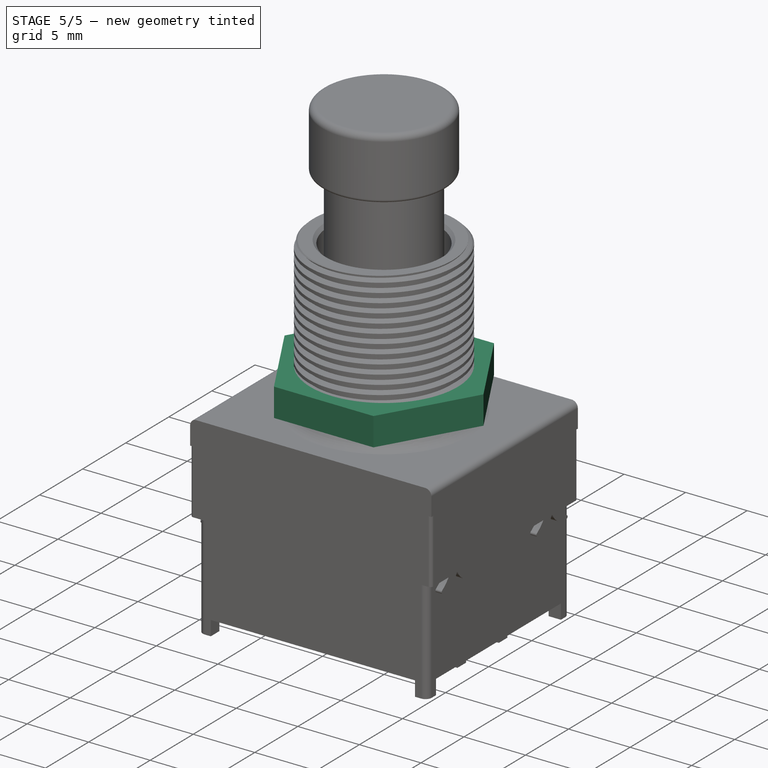
[diagram: stage 5 of 5 — iso view after this stage's code; geometry added in this stage tinted green]
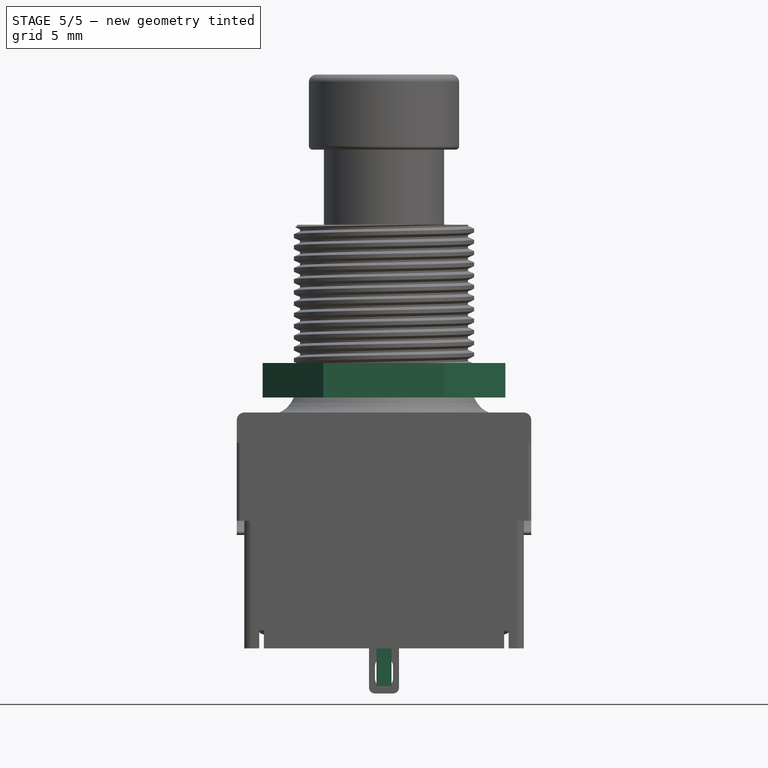
[diagram: stage 5 of 5 — front view after this stage's code; geometry added in this stage tinted green]
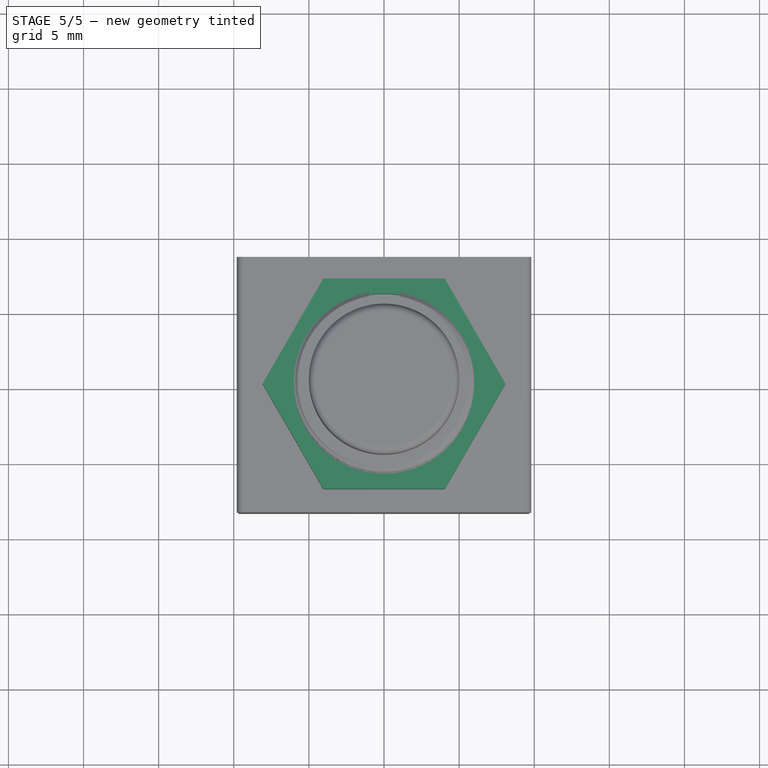
[diagram: stage 5 of 5 — top view after this stage's code; geometry added in this stage tinted green]
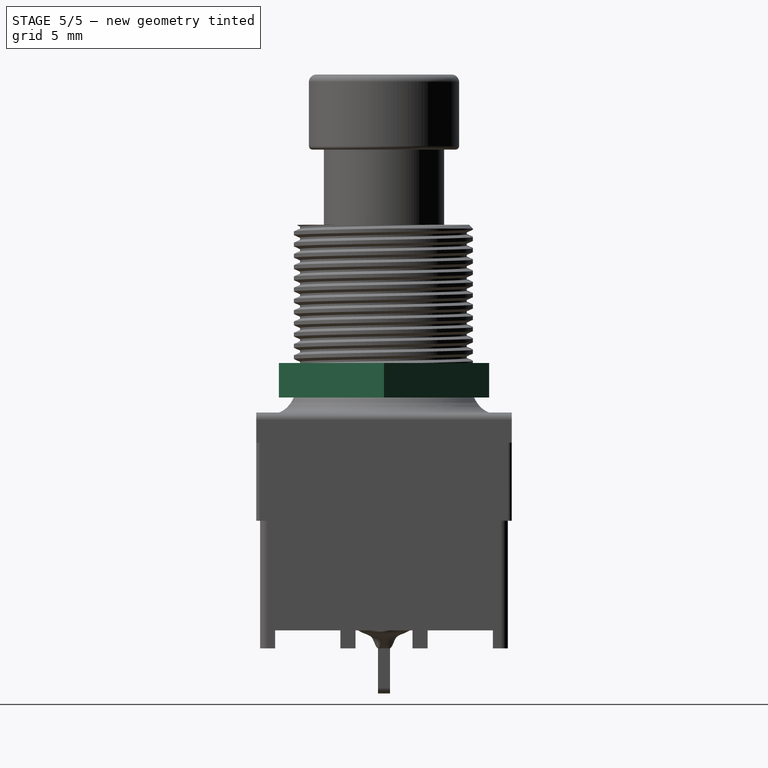
[diagram: stage 5 of 5 — right view after this stage's code; geometry added in this stage tinted green]
FEATURE [Sketcher::SketchObject] Sketch023
  AttachmentOffset = pos=(0,0,16.7) rot=(0,0,1;0rad)
  MapMode = 5
  Placement = pos=(0,0,16.7) rot=(0,0,1;0rad)
  Support = -> [XY_Plane005]
  sketch-geometry (8):
    g0: Circle CenterX=0 CenterY=0 CenterZ=0 NormalX=0 NormalY=0 NormalZ=1 AngleXU=0 Radius=6
    g1: LineSegment StartX=4.04145 StartY=7 StartZ=0 EndX=-4.04145 EndY=7 EndZ=0
    g2: LineSegment StartX=-4.04145 StartY=7 StartZ=0 EndX=-8.0829 EndY=1.48761e-11 EndZ=0
    g3: LineSegment StartX=-8.0829 StartY=1.48761e-11 StartZ=0 EndX=-4.04145 EndY=-7 EndZ=0
    g4: LineSegment StartX=-4.04145 StartY=-7 StartZ=0 EndX=4.04145 EndY=-7 EndZ=0
    g5: LineSegment StartX=4.04145 StartY=-7 StartZ=0 EndX=8.0829 EndY=1.39337e-11 EndZ=0
    g6: LineSegment StartX=8.0829 StartY=1.39337e-11 StartZ=0 EndX=4.04145 EndY=7 EndZ=0
    g7: Circle [constr] CenterX=0 CenterY=0 CenterZ=0 NormalX=0 NormalY=0 NormalZ=1 AngleXU=0 Radius=8.0829
  constraints (18):
    c: Coincident(g0,g-1)
    c: Radius(g0) = 6
    c: Coincident(g1,g2)
    c: Coincident(g2,g3)
    c: Coincident(g3,g4)
    c: Coincident(g4,g5)
    c: Coincident(g5,g6)
    c: Coincident(g6,g1)
    c: Equal(g1, g2-g6) x5
    c: PointOnObject(g1,g7)
    c: PointOnObject(g2,g7)
    c: PointOnObject(g3,g7)
    c: PointOnObject(g4,g7)
    c: PointOnObject(g5,g7)
    c: PointOnObject(g6,g7)
    c: Coincident(g7,g0)
    c: Horizontal(g1)
    c: DistanceY(g4,g1) = 14
FEATURE [PartDesign::Pad] Pad010
  Length = 2.3
  Length2 = 100
  Profile = -> Sketch023
  Type = 0
FEATURE [PartDesign::Body] Body017  label="EpoxySealTerminalsClone2"
  Group = -> [Clone009]
  Origin = -> Origin017
  Placement = pos=(0,-4.8,0) rot=(0,0,1;0rad)
  Tip = -> Clone009
FEATURE [App::DocumentObjectGroup] Group001  label="Terminals_Type_020_Epoxy_Seal"
  Group = -> [Body015,Body016,Body017]
FEATURE [Sketcher::SketchObject] Sketch032
  MapMode = 5
  Placement = pos=(0,0,0) rot=(1,0,0;1.5708rad)
  Support = -> [XZ_Plane018]
  sketch-geometry (7):
    g0: LineSegment StartX=0.5 StartY=0 StartZ=0 EndX=0.5 EndY=-2.5 EndZ=0
    g1: LineSegment StartX=-0.5 StartY=-2.5 StartZ=0 EndX=-0.5 EndY=0 EndZ=0
    g2: LineSegment StartX=-0.5 StartY=0 StartZ=0 EndX=-0.5 EndY=1.2 EndZ=0
    g3: LineSegment StartX=-0.5 StartY=1.2 StartZ=0 EndX=0.5 EndY=1.2 EndZ=0
    g4: LineSegment StartX=0.5 StartY=1.2 StartZ=0 EndX=0.5 EndY=0 EndZ=0
    g5: ArcOfCircle CenterX=0 CenterY=-2.5 CenterZ=0 NormalX=0 NormalY=0 NormalZ=1 AngleXU=0 Radius=0.5 StartAngle=3.14159 EndAngle=6.28319
    g6: GeomPoint X=0 Y=-3 Z=0
  constraints (19):
    c: Vertical(g0)
    c: Vertical(g1)
    c: DistanceX(g1,g0) = 1
    c: Coincident(g1,g2)
    c: Vertical(g2)
    c: Coincident(g2,g3)
    c: Coincident(g3,g4)
    c: Coincident(g4,g0)
    c: Vertical(g4)
    c: Horizontal(g3)
    c: PointOnObject(g0,g-1)
    c: DistanceY(g1,g2) = 1.2
    c: PointOnObject(g1,g-1)
    c: Coincident(g5,g1)
    c: Coincident(g5,g0)
    c: PointOnObject(g6,g5)
    c: PointOnObject(g6,g-2)
    c: DistanceY(g6,g-1) = 3
    c: Symmetric(g0,g1,g-2)
FEATURE [PartDesign::Pad] Pad013
  Length = 0.8
  Length2 = 100
  Midplane = true
  Placement = pos=(0,0,0) rot=(1,0,0;1.5708rad)
  Profile = -> Sketch032
  Type = 0
FEATURE [PartDesign::Body] Body018  label="Pin_B2_Original"
  Group = -> [Sketch032,Pad013]
  Origin = -> Origin018
  Tip = -> Pad013
FEATURE [PartDesign::FeatureBase] Clone010
  BaseFeature = -> Body018
FEATURE [PartDesign::Body] Body019  label="Pin_C2"
  Group = -> [Clone010]
  Origin = -> Origin019
  Placement = pos=(5.3,0,0) rot=(0,0,1;0rad)
  Tip = -> Clone010
FEATURE [PartDesign::FeatureBase] Clone011
  BaseFeature = -> Body018
FEATURE [PartDesign::Body] Body020  label="Pin_A2"
  Group = -> [Clone011]
  Origin = -> Origin020
  Placement = pos=(-5.3,0,0) rot=(0,0,1;0rad)
  Tip = -> Clone011
FEATURE [PartDesign::FeatureBase] Clone012
  BaseFeature = -> Body018
FEATURE [PartDesign::Body] Body021  label="Pin_C3"
  Group = -> [Clone012]
  Origin = -> Origin021
  Placement = pos=(5.3,4.8,0) rot=(0,0,1;0rad)
  Tip = -> Clone012
FEATURE [PartDesign::FeatureBase] Clone013
  BaseFeature = -> Body018
FEATURE [PartDesign::Body] Body022  label="Pin_B3"
  Group = -> [Clone013]
  Origin = -> Origin022
  Placement = pos=(0,4.8,0) rot=(0,0,1;0rad)
  Tip = -> Clone013
FEATURE [PartDesign::FeatureBase] Clone014
  BaseFeature = -> Body018
FEATURE [PartDesign::Body] Body023  label="Pin_A3"
  Group = -> [Clone014]
  Origin = -> Origin023
  Placement = pos=(-5.3,4.8,0) rot=(0,0,1;0rad)
  Tip = -> Clone014
FEATURE [PartDesign::FeatureBase] Clone015
  BaseFeature = -> Body018
FEATURE [PartDesign::Body] Body024  label="Pin_C1"
  Group = -> [Clone015]
  Origin = -> Origin024
  Placement = pos=(5.3,-4.8,0) rot=(0,0,1;0rad)
  Tip = -> Clone015
FEATURE [PartDesign::FeatureBase] Clone016
  BaseFeature = -> Body018
FEATURE [PartDesign::Body] Body025  label="Pin_B1"
  Group = -> [Clone016]
  Origin = -> Origin025
  Placement = pos=(0,-4.8,0) rot=(0,0,1;0rad)
  Tip = -> Clone016
FEATURE [PartDesign::FeatureBase] Clone017
  BaseFeature = -> Body018
FEATURE [PartDesign::Body] Body027  label="EpoxySealPins"
  Group = -> [Sketch033,Sketch034,Sketch035,Sketch036,Sketch037,AdditiveLoft002,MultiTransform004,LinearPattern002,LinearPattern003]
  Origin = -> Origin027
  Tip = -> MultiTransform004
FEATURE [PartDesign::FeatureBase] Clone018
  BaseFeature = -> Body027
FEATURE [PartDesign::Body] Body028  label="EpoxySealPinsClone1"
  Group = -> [Clone018]
  Origin = -> Origin028
  Placement = pos=(0,4.8,0) rot=(0,0,1;0rad)
  Tip = -> Clone018
FEATURE [PartDesign::FeatureBase] Clone019
  BaseFeature = -> Body027
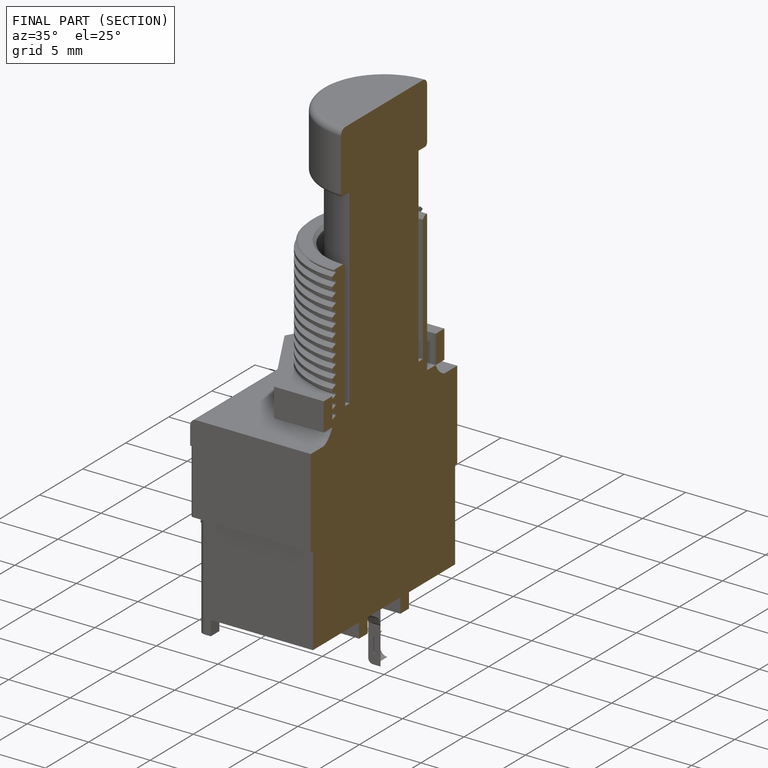
[diagram: finished part — half-section view (interior)]
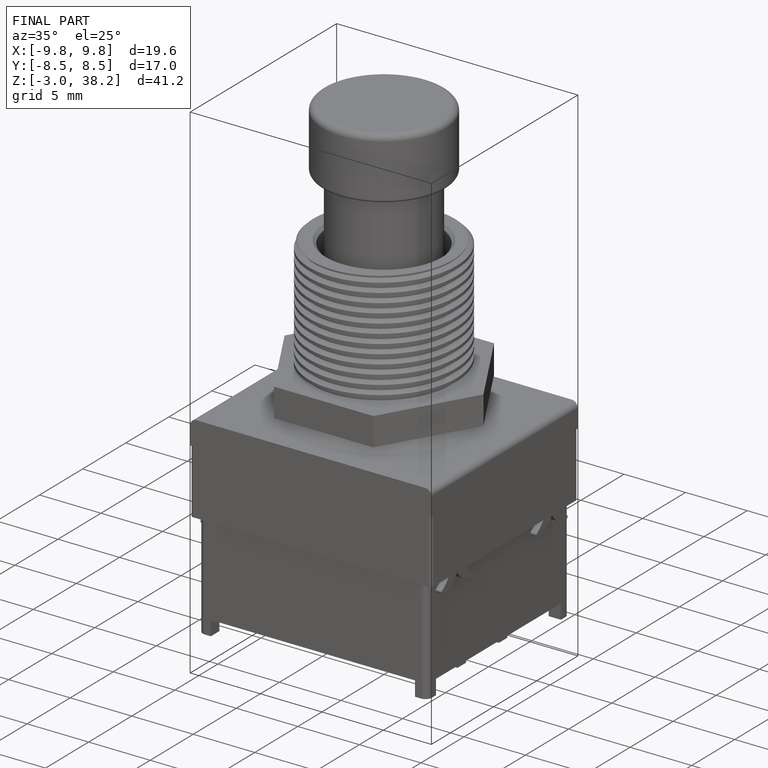
[diagram: finished part — iso view with bounding-box wireframe]
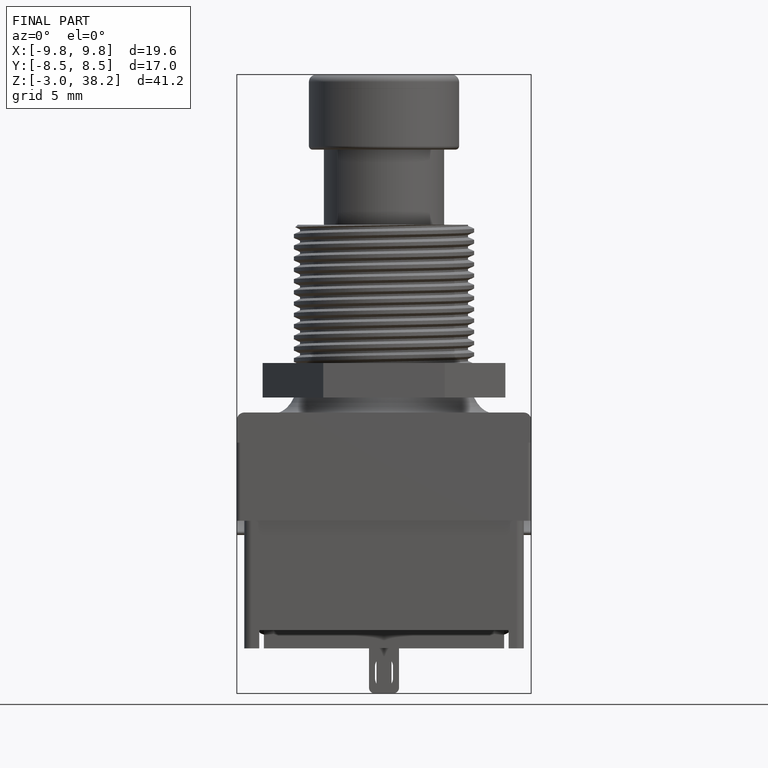
[diagram: finished part — front view with bounding-box wireframe]
